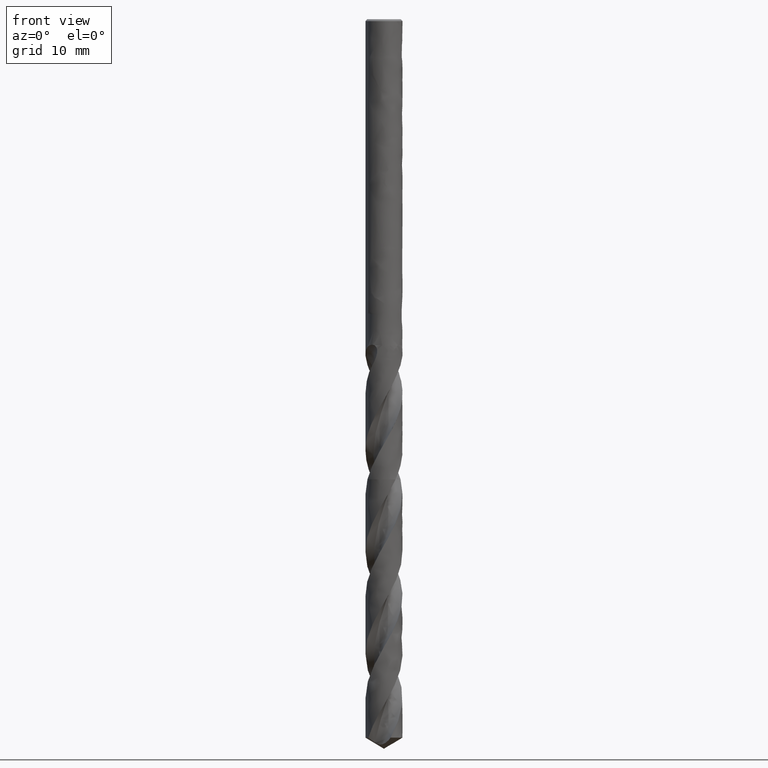
[diagram: clean part render]
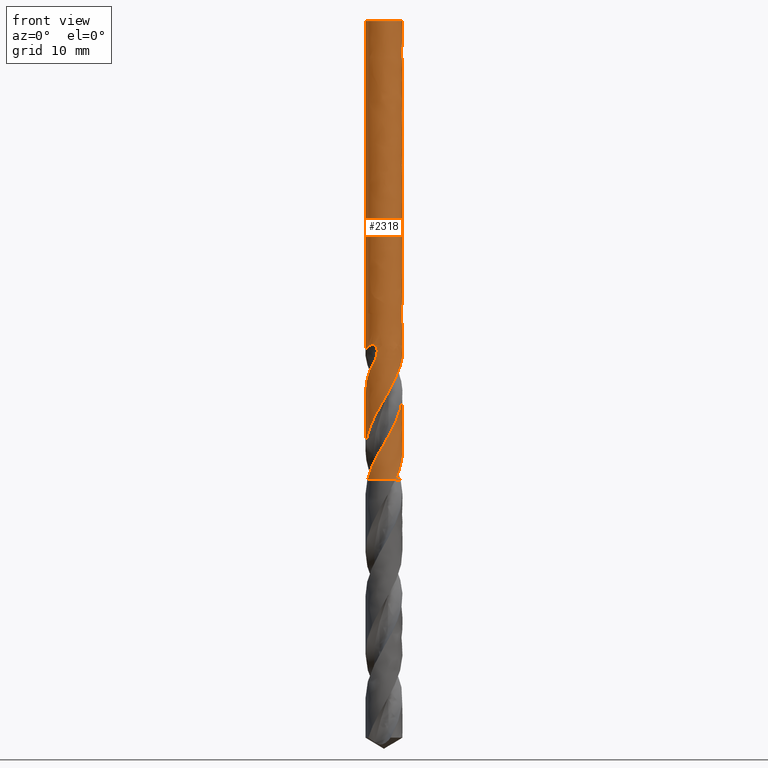
[diagram: same view with one face highlighted and labeled with its STEP entity id]
A machine part, front view. The second image highlights one B-rep face of the part: STEP entity #2318.
In plain terms, the highlighted face is a freeform B-spline surface patch.
Its self-contained STEP definition (entity closure, byte-faithful):
#73 = VERTEX_POINT('', #74);
#74 = CARTESIAN_POINT('', (-1.65, 1.11136697022622E-16, -0.164999999999999));
#90 = EDGE_CURVE('', #73, #73, #91, .T.);
#91 = CIRCLE('', #92, 1.64999999999999);
#92 = AXIS2_PLACEMENT_3D('', #93, #94, #95);
#93 = CARTESIAN_POINT('', (6.18650910348022E-34, 1.01033360929657E-17, -0.164999999999999));
#94 = DIRECTION('', (3.74939945665464E-33, 6.12323399573677E-17, -1.));
#95 = DIRECTION('', (-1., 6.12323399573677E-17, 0.));
#139 = VERTEX_POINT('', #140);
#140 = CARTESIAN_POINT('', (1.64538893806369, -0.123268984329499, -29.9833429949825));
#183 = EDGE_CURVE('', #139, #184, #186, .T.);
#184 = VERTEX_POINT('', #185);
#185 = CARTESIAN_POINT('', (-1.65, 2.45296925447218E-15, -38.4100280208144));
#186 = B_SPLINE_CURVE_WITH_KNOTS('', 3, (#187, #188, #189, #190, #191, #192, #193, #194, #195, #196, #197, #198, #199, #200, #201, #202, #203, #204, #205, #206, #207, #208, #209, #210, #211, #212, #213, #214, #215, #216, #217, #218, #219, #220, #221, #222, #223, #224, #225, #226, #227, #228, #229, #230, #231, #232, #233, #234, #235, #236, #237, #238, #239, #240, #241, #242, #243, #244, #245, #246, #247, #248, #249, #250, #251, #252, #253, #254, #255, #256, #257, #258, #259, #260, #261, #262, #263, #264, #265, #266, #267, #268, #269, #270, #271, #272, #273, #274, #275, #276, #277, #278, #279, #280, #281, #282, #283, #284, #285, #286, #287, #288, #289, #290, #291, #292, #293, #294, #295, #296, #297, #298, #299, #300, #301, #302, #303, #304, #305, #306, #307, #308, #309, #310, #311, #312, #313, #314, #315, #316, #317, #318, #319, #320, #321, #322, #323, #324, #325), .UNSPECIFIED., .F., .U., (4, 3, 3, 3, 3, 3, 3, 3, 3, 3, 3, 3, 3, 3, 3, 3, 3, 3, 3, 3, 3, 3, 3, 3, 3, 3, 3, 3, 3, 3, 3, 3, 3, 3, 3, 3, 3, 3, 3, 3, 3, 3, 3, 3, 3, 3, 4), (0., 0.196691843505556, 0.393388953291087, 0.590114296824917, 0.786881502321511, 0.983704843374498, 1.18059224436054, 1.37756416133713, 1.50891594516263, 1.80465609740093, 2.00182952361287, 2.13326773338844, 2.26467605281186, 2.3960164475034, 2.48358550546319, 2.68061818434923, 2.8119406961306, 2.94325410906195, 3.14017099331272, 3.33706908614019, 3.53393552862286, 3.73079492863606, 3.86207816159605, 3.99334770692011, 4.19016091032413, 4.38695892178182, 4.58373148529971, 4.62264372286411, 4.66156626318189, 4.95777459333329, 5.25389827784508, 5.54993747762322, 5.845896171247, 6.14177626797305, 6.43757974788995, 6.73330812082999, 7.02896250862106, 7.32454368913424, 7.62005217250105, 7.91548827559844, 8.21085201210476, 8.50614308279305, 8.80136086003676, 9.09650436801226, 9.39157228678575, 9.68656306466443, 9.83932886156497), .UNSPECIFIED.);
#187 = CARTESIAN_POINT('', (1.64538893806369, -0.123268984329499, -29.9833429949825));
#188 = CARTESIAN_POINT('', (1.64223135105458, -0.165416315744836, -30.0334654785062));
#189 = CARTESIAN_POINT('', (1.63747907798692, -0.207092304174458, -30.0839106071514));
#190 = CARTESIAN_POINT('', (1.63123277103601, -0.24815246663936, -30.1346420368924));
#191 = CARTESIAN_POINT('', (1.6249862968448, -0.289213728460024, -30.1853748249303));
#192 = CARTESIAN_POINT('', (1.61724234442225, -0.329681855062373, -30.2364281252124));
#193 = CARTESIAN_POINT('', (1.60811216034375, -0.369425607876888, -30.2877694856845));
#194 = CARTESIAN_POINT('', (1.59898066572582, -0.409175065478397, -30.3391182156551));
#195 = CARTESIAN_POINT('', (1.58845663386039, -0.448226496387263, -30.3907825840663));
#196 = CARTESIAN_POINT('', (1.57665810202898, -0.486466061824301, -30.4427308845677));
#197 = CARTESIAN_POINT('', (1.5648570595414, -0.524713764409486, -30.494690239353));
#198 = CARTESIAN_POINT('', (1.55177550660276, -0.562167247350119, -30.54696463174));
#199 = CARTESIAN_POINT('', (1.53753920679001, -0.598726304402958, -30.5995259199814));
#200 = CARTESIAN_POINT('', (1.52329884551485, -0.635295791359519, -30.6521022033901));
#201 = CARTESIAN_POINT('', (1.5078947959274, -0.670991917531544, -30.7049903560605));
#202 = CARTESIAN_POINT('', (1.49145769461568, -0.705729371056854, -30.7581647095181));
#203 = CARTESIAN_POINT('', (1.47501524353394, -0.740478130552968, -30.8113563695893));
#204 = CARTESIAN_POINT('', (1.45753344583138, -0.774280063781973, -30.8648633434737));
#205 = CARTESIAN_POINT('', (1.43914460405115, -0.807070510322028, -30.9186575838616));
#206 = CARTESIAN_POINT('', (1.4207478686669, -0.839875032506618, -30.9724749159938));
#207 = CARTESIAN_POINT('', (1.40143346871859, -0.871684787910792, -31.0266015132699));
#208 = CARTESIAN_POINT('', (1.38133670206284, -0.902446073477058, -31.0810142421729));
#209 = CARTESIAN_POINT('', (1.36793506496717, -0.922959402452656, -31.1172996635362));
#210 = CARTESIAN_POINT('', (1.35418305321833, -0.943010676049988, -31.1537215577119));
#211 = CARTESIAN_POINT('', (1.34012265984578, -0.962585713881092, -31.1902750196292));
#212 = CARTESIAN_POINT('', (1.30846551172472, -1.00665915163457, -31.2725755874433));
#213 = CARTESIAN_POINT('', (1.27522555118036, -1.04834022233193, -31.3555954958477));
#214 = CARTESIAN_POINT('', (1.24086646170517, -1.08754329762786, -31.4392650737293));
#215 = CARTESIAN_POINT('', (1.21795885398917, -1.11368044747255, -31.4950485620914));
#216 = CARTESIAN_POINT('', (1.1945359793711, -1.13873834591323, -31.5511387511323));
#217 = CARTESIAN_POINT('', (1.1707307387024, -1.16270784699224, -31.60751676282));
#218 = CARTESIAN_POINT('', (1.15486187504829, -1.17868620863846, -31.6450990327501));
#219 = CARTESIAN_POINT('', (1.1388209564809, -1.19418285547621, -31.6828172045466));
#220 = CARTESIAN_POINT('', (1.12266754622384, -1.20918054096817, -31.7206813386925));
#221 = CARTESIAN_POINT('', (1.10651780941244, -1.22417481583774, -31.7585368621588));
#222 = CARTESIAN_POINT('', (1.09026220484906, -1.23866546594237, -31.7965499982829));
#223 = CARTESIAN_POINT('', (1.07391182013573, -1.25268248274375, -31.8346927707906));
#224 = CARTESIAN_POINT('', (1.05756988690784, -1.26669225417351, -31.8728158273654));
#225 = CARTESIAN_POINT('', (1.04113211526124, -1.28023145524782, -31.9110730217932));
#226 = CARTESIAN_POINT('', (1.02452851319123, -1.29338367302908, -31.9493880251924));
#227 = CARTESIAN_POINT('', (1.01345833333206, -1.30215269891705, -31.974933926446));
#228 = CARTESIAN_POINT('', (1.00231201771248, -1.31075136117969, -32.0005059261863));
#229 = CARTESIAN_POINT('', (0.991047195800194, -1.31921395372266, -32.0260700823963));
#230 = CARTESIAN_POINT('', (0.965701050823158, -1.33825500906698, -32.0835901048664));
#231 = CARTESIAN_POINT('', (0.939737191077802, -1.3566163226202, -32.1410703631071));
#232 = CARTESIAN_POINT('', (0.913217893656101, -1.37423909080855, -32.1985134370536));
#233 = CARTESIAN_POINT('', (0.895542750792571, -1.38598468649409, -32.2367993132734));
#234 = CARTESIAN_POINT('', (0.877617724402044, -1.39740488382222, -32.2750719006531));
#235 = CARTESIAN_POINT('', (0.859443568173065, -1.40849449879151, -32.3133197567548));
#236 = CARTESIAN_POINT('', (0.841270671163996, -1.4195833454025, -32.3515649628043));
#237 = CARTESIAN_POINT('', (0.822843276134242, -1.43034476408047, -32.389786471108));
#238 = CARTESIAN_POINT('', (0.804172464765405, -1.44076599311378, -32.4279795500478));
#239 = CARTESIAN_POINT('', (0.776173816956998, -1.45639361184284, -32.4852536847828));
#240 = CARTESIAN_POINT('', (0.747623023765346, -1.47125822369007, -32.5424740024526));
#241 = CARTESIAN_POINT('', (0.718579647169145, -1.48530915659814, -32.5996362873632));
#242 = CARTESIAN_POINT('', (0.689539042130018, -1.49935874865101, -32.6567931173799));
#243 = CARTESIAN_POINT('', (0.660003164522755, -1.51259624599059, -32.7139059864181));
#244 = CARTESIAN_POINT('', (0.630032176858627, -1.52497851005278, -32.7709679740332));
#245 = CARTESIAN_POINT('', (0.600066006874955, -1.53735878373039, -32.8280207892304));
#246 = CARTESIAN_POINT('', (0.569658214465276, -1.54888702224775, -32.8850347645891));
#247 = CARTESIAN_POINT('', (0.538864166179559, -1.55952730351463, -32.941997710848));
#248 = CARTESIAN_POINT('', (0.508071219484047, -1.57016720414856, -32.9989586193811));
#249 = CARTESIAN_POINT('', (0.476879294971223, -1.57992289252717, -33.055877334287));
#250 = CARTESIAN_POINT('', (0.445379576065721, -1.58875329526756, -33.112760986147));
#251 = CARTESIAN_POINT('', (0.424372781698939, -1.59464218764465, -33.1506960287117));
#252 = CARTESIAN_POINT('', (0.40322794346835, -1.60011995288637, -33.1886209208367));
#253 = CARTESIAN_POINT('', (0.381989015993349, -1.60517425585524, -33.2265470846104));
#254 = CARTESIAN_POINT('', (0.360752302896379, -1.61022803186072, -33.264469294189));
#255 = CARTESIAN_POINT('', (0.339424119967465, -1.61485819391927, -33.3023992003404));
#256 = CARTESIAN_POINT('', (0.318022082865627, -1.61906206020949, -33.3403322061599));
#257 = CARTESIAN_POINT('', (0.285933882430515, -1.62536494172872, -33.397205385477));
#258 = CARTESIAN_POINT('', (0.253673190838224, -1.63071093504664, -33.4540955744389));
#259 = CARTESIAN_POINT('', (0.221284488115991, -1.63509424050091, -33.5109787531256));
#260 = CARTESIAN_POINT('', (0.188898285467053, -1.63947720760927, -33.5678575410185));
#261 = CARTESIAN_POINT('', (0.156371999081292, -1.64289883995141, -33.6247389394709));
#262 = CARTESIAN_POINT('', (0.123771595562643, -1.64535120631793, -33.6816113635839));
#263 = CARTESIAN_POINT('', (0.09117540760034, -1.6478032555691, -33.7384764335268));
#264 = CARTESIAN_POINT('', (0.0584989801507434, -1.6492866391157, -33.7953455699569));
#265 = CARTESIAN_POINT('', (0.0258143186341794, -1.64979805459743, -33.8522104233425));
#266 = CARTESIAN_POINT('', (0.0193508498918561, -1.64989918821262, -33.8634555819381));
#267 = CARTESIAN_POINT('', (0.0128868886267745, -1.64996233640097, -33.8747008632192));
#268 = CARTESIAN_POINT('', (0.00642292644565755, -1.64998749874533, -33.8859461648073));
#269 = CARTESIAN_POINT('', (-4.2747192119543E-5, -1.6500126677519, -33.8971944438024));
#270 = CARTESIAN_POINT('', (-0.00650847720482805, -1.64999983101621, -33.9084428396284));
#271 = CARTESIAN_POINT('', (-0.0129737726045702, -1.64994899352204, -33.9196912493099));
#272 = CARTESIAN_POINT('', (-0.062175965952124, -1.64956211000586, -34.0052939006639));
#273 = CARTESIAN_POINT('', (-0.111366406079688, -1.64697235795428, -34.0909215925822));
#274 = CARTESIAN_POINT('', (-0.160331397093514, -1.64219178024566, -34.1765276388622));
#275 = CARTESIAN_POINT('', (-0.209282395681873, -1.63741256865344, -34.2621092220268));
#276 = CARTESIAN_POINT('', (-0.258031715731681, -1.63044119358203, -34.3477119538632));
#277 = CARTESIAN_POINT('', (-0.306358360190944, -1.62130951861182, -34.4332946416613));
#278 = CARTESIAN_POINT('', (-0.354671216953041, -1.61218044892841, -34.5188529125317));
#279 = CARTESIAN_POINT('', (-0.402585411596793, -1.6008878982975, -34.6044336333777));
#280 = CARTESIAN_POINT('', (-0.449886413078727, -1.5874829811142, -34.6899942154834));
#281 = CARTESIAN_POINT('', (-0.497174551325896, -1.57408170932087, -34.7755315298818));
#282 = CARTESIAN_POINT('', (-0.543873506379846, -1.55856249857517, -34.8610908920666));
#283 = CARTESIAN_POINT('', (-0.589773928069063, -1.54099536461665, -34.9466300138313));
#284 = CARTESIAN_POINT('', (-0.635662160115513, -1.5234328959113, -35.032146419218));
#285 = CARTESIAN_POINT('', (-0.680774843022437, -1.50381496553743, -35.1176849722646));
#286 = CARTESIAN_POINT('', (-0.724910096502624, -1.48222985801412, -35.2032033227578));
#287 = CARTESIAN_POINT('', (-0.769033921359086, -1.46065033985651, -35.2886995286619));
#288 = CARTESIAN_POINT('', (-0.81220243025245, -1.4370941063135, -35.3742179212333));
#289 = CARTESIAN_POINT('', (-0.854222828736125, -1.41166687248304, -35.459716053604));
#290 = CARTESIAN_POINT('', (-0.89623255788928, -1.38624609483985, -35.5451924772841));
#291 = CARTESIAN_POINT('', (-0.937115205455465, -1.35894289545401, -35.6306910581715));
#292 = CARTESIAN_POINT('', (-0.976688309244192, -1.32987967372455, -35.7161694231762));
#293 = CARTESIAN_POINT('', (-1.01625151265728, -1.30082372301467, -35.8016264032542));
#294 = CARTESIAN_POINT('', (-1.05452515833343, -1.26999442954987, -35.8871054759035));
#295 = CARTESIAN_POINT('', (-1.09133845032867, -1.23752995391393, -35.9725644141966));
#296 = CARTESIAN_POINT('', (-1.12814262694795, -1.2050735168392, -36.0580021919166));
#297 = CARTESIAN_POINT('', (-1.16350532272102, -1.17096669428948, -36.1434619615768));
#298 = CARTESIAN_POINT('', (-1.19726869983182, -1.13536234762433, -36.2289016856551));
#299 = CARTESIAN_POINT('', (-1.23102377295938, -1.09976675772237, -36.3143203961353));
#300 = CARTESIAN_POINT('', (-1.26319705616636, -1.06265672749938, -36.3997610584301));
#301 = CARTESIAN_POINT('', (-1.29364507851894, -1.02419842356046, -36.4851816875274));
#302 = CARTESIAN_POINT('', (-1.32408564309556, -0.985749539393084, -36.570581394152));
#303 = CARTESIAN_POINT('', (-1.35281681880069, -0.945934074585525, -36.656003083692));
#304 = CARTESIAN_POINT('', (-1.37971074088649, -0.904929981535844, -36.7414046988117));
#305 = CARTESIAN_POINT('', (-1.40659807534998, -0.863935932371806, -36.8267853949453));
#306 = CARTESIAN_POINT('', (-1.43166220024866, -0.821733812499336, -36.9121881174314));
#307 = CARTESIAN_POINT('', (-1.4547918209496, -0.778511886677481, -36.9975707261298));
#308 = CARTESIAN_POINT('', (-1.47791575126747, -0.73530059437697, -37.082932328874));
#309 = CARTESIAN_POINT('', (-1.49911734601485, -0.691049047548413, -37.1683159708881));
#310 = CARTESIAN_POINT('', (-1.5183026437962, -0.645954396100433, -37.2536794989227));
#311 = CARTESIAN_POINT('', (-1.53748317964365, -0.600870937481036, -37.3390218390934));
#312 = CARTESIAN_POINT('', (-1.55465771180191, -0.554922948646565, -37.4243861764716));
#313 = CARTESIAN_POINT('', (-1.56975023566918, -0.508315057436397, -37.5097304581931));
#314 = CARTESIAN_POINT('', (-1.58483896264212, -0.461718891583711, -37.5950532694686));
#315 = CARTESIAN_POINT('', (-1.59785408887474, -0.414440405961563, -37.6803979804224));
#316 = CARTESIAN_POINT('', (-1.60873809667148, -0.366690245735858, -37.7657227426576));
#317 = CARTESIAN_POINT('', (-1.61961931696506, -0.318952314803394, -37.8510256523684));
#318 = CARTESIAN_POINT('', (-1.62837587342201, -0.270719408504877, -37.9363503759895));
#319 = CARTESIAN_POINT('', (-1.63496920834824, -0.22220640799305, -38.021655206602));
#320 = CARTESIAN_POINT('', (-1.64156081955011, -0.173706090446843, -38.1069377355999));
#321 = CARTESIAN_POINT('', (-1.64599359603662, -0.124901912149888, -38.1922420825859));
#322 = CARTESIAN_POINT('', (-1.64824826088427, -0.0760109892847059, -38.2775265128204));
#323 = CARTESIAN_POINT('', (-1.6494158759354, -0.050692025599088, -38.3216924492665));
#324 = CARTESIAN_POINT('', (-1.65, -0.0253449787045638, -38.3658615715157));
#325 = CARTESIAN_POINT('', (-1.65, 2.52582764046321E-15, -38.4100280208144));
#491 = VERTEX_POINT('', #492);
#492 = CARTESIAN_POINT('', (1.46615714011467, -0.756890507597214, -34.6872458062529));
#520 = EDGE_CURVE('', #521, #491, #523, .T.);
#521 = VERTEX_POINT('', #522);
#522 = CARTESIAN_POINT('', (1.53910565013381, 0.594687983505777, -32.2474321175249));
#523 = B_SPLINE_CURVE_WITH_KNOTS('', 3, (#524, #525, #526, #527, #528, #529, #530, #531, #532, #533, #534, #535, #536, #537, #538, #539, #540, #541, #542, #543, #544, #545, #546, #547, #548, #549, #550, #551, #552, #553, #554, #555, #556, #557, #558, #559, #560, #561, #562, #563, #564, #565, #566, #567, #568, #569), .UNSPECIFIED., .F., .U., (4, 3, 3, 3, 3, 3, 3, 3, 3, 3, 3, 3, 3, 3, 3, 4), (0., 0.0875494775017101, 0.284421161959008, 0.481274884137651, 0.678093466911457, 0.809346629557163, 1.00613133969555, 1.13737751973871, 1.2248961605815, 1.26381913148016, 1.46115644533372, 1.65847511778099, 1.95457678031589, 2.2505925900521, 2.54652905972296, 2.81024826565918), .UNSPECIFIED.);
#524 = CARTESIAN_POINT('', (1.53910565013381, 0.594687983505777, -32.247432117525));
#525 = CARTESIAN_POINT('', (1.54411796900874, 0.581715654293429, -32.2730885419306));
#526 = CARTESIAN_POINT('', (1.54897857578513, 0.568648297674712, -32.2987272173271));
#527 = CARTESIAN_POINT('', (1.55368591632017, 0.555481838972569, -32.3243424879544));
#528 = CARTESIAN_POINT('', (1.56427126859061, 0.525874547450152, -32.3819433054594));
#529 = CARTESIAN_POINT('', (1.57408458964567, 0.495753723457203, -32.4394297781565));
#530 = CARTESIAN_POINT('', (1.58306273670135, 0.465201431282883, -32.4968096168594));
#531 = CARTESIAN_POINT('', (1.59204006460429, 0.434651926654102, -32.5541842203115));
#532 = CARTESIAN_POINT('', (1.60018380715275, 0.403665832505781, -32.6114647041189));
#533 = CARTESIAN_POINT('', (1.60744113950628, 0.372334504207391, -32.6686607596191));
#534 = CARTESIAN_POINT('', (1.61469717638856, 0.341008768712719, -32.7258466053285));
#535 = CARTESIAN_POINT('', (1.62106971866525, 0.309329346773994, -32.782958998434));
#536 = CARTESIAN_POINT('', (1.62652105668907, 0.277361230433366, -32.8399896496349));
#537 = CARTESIAN_POINT('', (1.63015641137049, 0.256042530164318, -32.8780218985839));
#538 = CARTESIAN_POINT('', (1.63338276443771, 0.234592482104956, -32.916022107913));
#539 = CARTESIAN_POINT('', (1.6361903489102, 0.21302850075315, -32.9539861293364));
#540 = CARTESIAN_POINT('', (1.64039969278788, 0.180698142122483, -33.0109046736281));
#541 = CARTESIAN_POINT('', (1.64366710590381, 0.148102835578697, -33.0677508066599));
#542 = CARTESIAN_POINT('', (1.64596090858072, 0.115380619795072, -33.1245547362146));
#543 = CARTESIAN_POINT('', (1.64749076747527, 0.0935564352782559, -33.1624402953124));
#544 = CARTESIAN_POINT('', (1.6485878839774, 0.0716745278174714, -33.2003125758046));
#545 = CARTESIAN_POINT('', (1.64924852074226, 0.0497927387223025, -33.2381900354775));
#546 = CARTESIAN_POINT('', (1.64968905190082, 0.0352013468799783, -33.2634477899361));
#547 = CARTESIAN_POINT('', (1.64993575049179, 0.0206102661880688, -33.2887098460537));
#548 = CARTESIAN_POINT('', (1.6499890036537, 0.006023937406053, -33.3139743096468));
#549 = CARTESIAN_POINT('', (1.65001268742268, -0.000463174884921591, -33.3252104071426));
#550 = CARTESIAN_POINT('', (1.64999811038105, -0.00694945005227383, -33.3364471336925));
#551 = CARTESIAN_POINT('', (1.64994530614357, -0.0134345351539962, -33.3476843022267));
#552 = CARTESIAN_POINT('', (1.64967759157441, -0.0463135586339243, -33.4046561263878));
#553 = CARTESIAN_POINT('', (1.64842735329261, -0.0791654028204028, -33.4616474696399));
#554 = CARTESIAN_POINT('', (1.64619769765188, -0.111951508456203, -33.5186298398722));
#555 = CARTESIAN_POINT('', (1.64396825263485, -0.144734516963012, -33.5756068272831));
#556 = CARTESIAN_POINT('', (1.64075807533308, -0.177464562781536, -33.6325843789034));
#557 = CARTESIAN_POINT('', (1.63657262262832, -0.210071537490078, -33.6895522676853));
#558 = CARTESIAN_POINT('', (1.63029182066989, -0.259002433394075, -33.7750398009747));
#559 = CARTESIAN_POINT('', (1.62181125598932, -0.307671306018409, -33.8605442749296));
#560 = CARTESIAN_POINT('', (1.6111728681114, -0.355839836248396, -33.9460335537541));
#561 = CARTESIAN_POINT('', (1.60053756476656, -0.403994400318607, -34.0314980455046));
#562 = CARTESIAN_POINT('', (1.58774004454993, -0.451678249054663, -34.1169872411854));
#563 = CARTESIAN_POINT('', (1.57283628545866, -0.498684288046426, -34.2024533826185));
#564 = CARTESIAN_POINT('', (1.55793652096897, -0.545677728176631, -34.2878966168654));
#565 = CARTESIAN_POINT('', (1.54092442184151, -0.592015437205011, -34.373360673698));
#566 = CARTESIAN_POINT('', (1.52187765463306, -0.637486003241219, -34.4588041108886));
#567 = CARTESIAN_POINT('', (1.50490442274498, -0.678006394600473, -34.5349457078788));
#568 = CARTESIAN_POINT('', (1.48630863628568, -0.717855456029562, -34.611103062278));
#569 = CARTESIAN_POINT('', (1.46615714011467, -0.756890507597223, -34.6872458062529));
#572 = VERTEX_POINT('', #573);
#573 = CARTESIAN_POINT('', (1.32723117543861, 0.980284350045358, -31.4755215713197));
#582 = EDGE_CURVE('', #583, #572, #585, .T.);
#583 = VERTEX_POINT('', #584);
#584 = CARTESIAN_POINT('', (1.04998764540543, 1.27280239805555, -29.));
#585 = B_SPLINE_CURVE_WITH_KNOTS('', 3, (#586, #587, #588, #589, #590, #591, #592, #593, #594, #595, #596, #597, #598, #599, #600, #601, #602, #603, #604, #605, #606, #607, #608, #609, #610, #611, #612, #613, #614, #615, #616, #617, #618, #619, #620, #621, #622, #623, #624, #625, #626, #627, #628, #629, #630, #631, #632, #633, #634, #635, #636, #637, #638, #639, #640, #641, #642, #643, #644, #645, #646, #647, #648, #649, #650, #651, #652, #653, #654, #655, #656, #657, #658, #659, #660, #661, #662, #663, #664, #665, #666, #667, #668, #669, #670, #671, #672, #673, #674, #675, #676, #677, #678, #679, #680, #681, #682), .UNSPECIFIED., .F., .U., (4, 3, 3, 3, 3, 3, 3, 3, 3, 3, 3, 3, 3, 3, 3, 3, 3, 3, 3, 3, 3, 3, 3, 3, 3, 3, 3, 3, 3, 3, 3, 3, 4), (0., 0.0876303127930591, 0.174973486297054, 0.233055130452764, 0.291030990434377, 0.348921100483589, 0.406762531524445, 0.464602443433246, 0.522485560539364, 0.580443415477149, 0.638490850056631, 0.69662895767908, 0.722540610505984, 0.748461545433137, 0.83589767612148, 0.923487689661412, 1.0111919792304, 1.09897793056975, 1.2309677184985, 1.36305423353449, 1.49517711764423, 1.62729333607008, 1.75937771008891, 1.89141058300535, 2.0233781190771, 2.15527384137401, 2.28709249628333, 2.41883762951828, 2.55051220943465, 2.68211681930373, 2.81364951632583, 2.94512266158331, 3.01816239662991), .UNSPECIFIED.);
#586 = CARTESIAN_POINT('', (1.04998764540571, 1.27280239805532, -29.));
#587 = CARTESIAN_POINT('', (1.02745511527649, 1.29139041948862, -29.000027134948));
#588 = CARTESIAN_POINT('', (1.00436191236108, 1.30942583990984, -29.0017599789356));
#589 = CARTESIAN_POINT('', (0.98107447238416, 1.32664723255134, -29.0055479818319));
#590 = CARTESIAN_POINT('', (0.957863338639021, 1.34381219565058, -29.0093235725341));
#591 = CARTESIAN_POINT('', (0.934322263688094, 1.36026544107529, -29.0151733340593));
#592 = CARTESIAN_POINT('', (0.911034465741511, 1.37568753800821, -29.0233882696083));
#593 = CARTESIAN_POINT('', (0.89554849770027, 1.38594295592191, -29.0288510544394));
#594 = CARTESIAN_POINT('', (0.880115084412994, 1.39578438628761, -29.0353803250106));
#595 = CARTESIAN_POINT('', (0.864962292117408, 1.40511217816052, -29.0430102663795));
#596 = CARTESIAN_POINT('', (0.849837097622152, 1.41442298131395, -29.0506263113262));
#597 = CARTESIAN_POINT('', (0.834931721529012, 1.42325883093115, -29.0593719430429));
#598 = CARTESIAN_POINT('', (0.820500435066246, 1.43153031265709, -29.0692099949638));
#599 = CARTESIAN_POINT('', (0.8060904933811, 1.43978956034287, -29.079033495789));
#600 = CARTESIAN_POINT('', (0.792090523711571, 1.44752260168377, -29.0899912285495));
#601 = CARTESIAN_POINT('', (0.778746922039617, 1.45466602057442, -29.1019613004432));
#602 = CARTESIAN_POINT('', (0.765414540821325, 1.46180343266101, -29.1139213068659));
#603 = CARTESIAN_POINT('', (0.75267690160448, 1.46838555166248, -29.1269467757307));
#604 = CARTESIAN_POINT('', (0.740733596551421, 1.47438588535702, -29.1408424676472));
#605 = CARTESIAN_POINT('', (0.728790605174169, 1.48038606146038, -29.1547377946108));
#606 = CARTESIAN_POINT('', (0.717588554876552, 1.48583225220636, -29.1695634935806));
#607 = CARTESIAN_POINT('', (0.707255076736291, 1.49073480419246, -29.1850844948783));
#608 = CARTESIAN_POINT('', (0.696913879705263, 1.49564101828175, -29.2006170900374));
#609 = CARTESIAN_POINT('', (0.68739979670399, 1.50002374291959, -29.216906383734));
#610 = CARTESIAN_POINT('', (0.678766814735183, 1.50392008139205, -29.2337159933052));
#611 = CARTESIAN_POINT('', (0.670122685986703, 1.50782145075958, -29.2505473071977));
#612 = CARTESIAN_POINT('', (0.662330758458867, 1.51124955209219, -29.2679562333307));
#613 = CARTESIAN_POINT('', (0.655387336868858, 1.51425474695375, -29.2857324104388));
#614 = CARTESIAN_POINT('', (0.648433183528704, 1.5172645866435, -29.3035360624004));
#615 = CARTESIAN_POINT('', (0.642309322726513, 1.51985925790841, -29.3217568020518));
#616 = CARTESIAN_POINT('', (0.636975674395901, 1.52209132125109, -29.3402218906118));
#617 = CARTESIAN_POINT('', (0.631633694635523, 1.52432687119016, -29.3587158225785));
#618 = CARTESIAN_POINT('', (0.627071525225367, 1.526203953867, -29.3774954042215));
#619 = CARTESIAN_POINT('', (0.623230730311516, 1.52777074746029, -29.3964256288146));
#620 = CARTESIAN_POINT('', (0.621518921165038, 1.52846905384316, -29.4048626665451));
#621 = CARTESIAN_POINT('', (0.619949159649647, 1.52910608849325, -29.4133349297979));
#622 = CARTESIAN_POINT('', (0.618515800172791, 1.52968565559615, -29.4218326418787));
#623 = CARTESIAN_POINT('', (0.617081927236356, 1.5302654303122, -29.4303333980191));
#624 = CARTESIAN_POINT('', (0.615784109736095, 1.53078787323758, -29.4388622028099));
#625 = CARTESIAN_POINT('', (0.614616609210992, 1.53125648527018, -29.4474104383334));
#626 = CARTESIAN_POINT('', (0.610678412970057, 1.53283720074358, -29.4762452253688));
#627 = CARTESIAN_POINT('', (0.608216258798784, 1.5338105003704, -29.5053460882798));
#628 = CARTESIAN_POINT('', (0.607015136635347, 1.53428570478108, -29.5344628271207));
#629 = CARTESIAN_POINT('', (0.605811900561994, 1.53476174552577, -29.5636308098441));
#630 = CARTESIAN_POINT('', (0.605870373796186, 1.53473859631465, -29.5928813328483));
#631 = CARTESIAN_POINT('', (0.606997350023357, 1.53429274164503, -29.6220528385721));
#632 = CARTESIAN_POINT('', (0.608125796582166, 1.53384630528237, -29.6512624034728));
#633 = CARTESIAN_POINT('', (0.61032671349361, 1.53297505367111, -29.6804406154771));
#634 = CARTESIAN_POINT('', (0.613435187632264, 1.53173015592648, -29.7094829810297));
#635 = CARTESIAN_POINT('', (0.616546556082046, 1.53048409905321, -29.7385523880303));
#636 = CARTESIAN_POINT('', (0.620571030030747, 1.528861829661, -29.7675206442592));
#637 = CARTESIAN_POINT('', (0.625370370733358, 1.52689616523483, -29.7963193627535));
#638 = CARTESIAN_POINT('', (0.632586376846759, 1.52394070793452, -29.8396194203218));
#639 = CARTESIAN_POINT('', (0.641562975015067, 1.52020524034978, -29.8826024001326));
#640 = CARTESIAN_POINT('', (0.651916462333919, 1.51575226410454, -29.9251309406718));
#641 = CARTESIAN_POINT('', (0.662277537079752, 1.51129602454993, -29.9676906477336));
#642 = CARTESIAN_POINT('', (0.674032806838034, 1.50611396639122, -30.0098566946961));
#643 = CARTESIAN_POINT('', (0.686875360048874, 1.50023406165762, -30.0515584231182));
#644 = CARTESIAN_POINT('', (0.699721449364553, 1.49435253793447, -30.0932716338119));
#645 = CARTESIAN_POINT('', (0.713669581855332, 1.48776597611653, -30.1345625869629));
#646 = CARTESIAN_POINT('', (0.728464157843484, 1.48048639667421, -30.175400492429));
#647 = CARTESIAN_POINT('', (0.743257987435828, 1.47320718449133, -30.2162363375967));
#648 = CARTESIAN_POINT('', (0.758908698239167, 1.46522970539233, -30.2566501846099));
#649 = CARTESIAN_POINT('', (0.77519806691903, 1.45656031699515, -30.2966365416258));
#650 = CARTESIAN_POINT('', (0.79148350931874, 1.44789301820918, -30.3366132605985));
#651 = CARTESIAN_POINT('', (0.808417373127847, 1.43852872652138, -30.3761850709342));
#652 = CARTESIAN_POINT('', (0.82580880042777, 1.42847464980519, -30.415363248024));
#653 = CARTESIAN_POINT('', (0.843193446625197, 1.41842449328045, -30.4545261491257));
#654 = CARTESIAN_POINT('', (0.861043243258682, 1.4076804014678, -30.493312883172));
#655 = CARTESIAN_POINT('', (0.879184270311468, 1.39625750448724, -30.531749648831));
#656 = CARTESIAN_POINT('', (0.897316320225147, 1.38484026015991, -30.5701673939467));
#657 = CARTESIAN_POINT('', (0.915745844649712, 1.37274078423084, -30.6082489877816));
#658 = CARTESIAN_POINT('', (0.934317821137417, 1.3599816944007, -30.6460290772192));
#659 = CARTESIAN_POINT('', (0.95287969117184, 1.34722954778123, -30.6837886075792));
#660 = CARTESIAN_POINT('', (0.971589363342772, 1.33381466633847, -30.7212575901094));
#661 = CARTESIAN_POINT('', (0.990304332642506, 1.31977169569188, -30.7584797245875));
#662 = CARTESIAN_POINT('', (1.00900836668393, 1.30573693042939, -30.7956801099702));
#663 = CARTESIAN_POINT('', (1.02772128282797, 1.29107208571392, -30.8326434501568));
#664 = CARTESIAN_POINT('', (1.04631358266819, 1.27582439494, -30.869420052919));
#665 = CARTESIAN_POINT('', (1.06489551267863, 1.26058520854474, -30.9061761435813));
#666 = CARTESIAN_POINT('', (1.08336177265642, 1.2447598845949, -30.9427523285475));
#667 = CARTESIAN_POINT('', (1.10159645721517, 1.22840760558175, -30.9792027109296));
#668 = CARTESIAN_POINT('', (1.11982137657442, 1.21206408368563, -31.0156335730806));
#669 = CARTESIAN_POINT('', (1.1378182786457, 1.19519105709124, -31.0519452634338));
#670 = CARTESIAN_POINT('', (1.15547956261924, 1.17786543389715, -31.0881994761548));
#671 = CARTESIAN_POINT('', (1.1731314616312, 1.16054901729916, -31.1244344238896));
#672 = CARTESIAN_POINT('', (1.1904499523199, 1.14277862659613, -31.1606190811345));
#673 = CARTESIAN_POINT('', (1.20734050464136, 1.12464612472271, -31.1968177120196));
#674 = CARTESIAN_POINT('', (1.22422182744035, 1.10652353101158, -31.2329965628482));
#675 = CARTESIAN_POINT('', (1.24067862967556, 1.08803619113801, -31.2691952201272));
#676 = CARTESIAN_POINT('', (1.25663458562679, 1.06928458242255, -31.3054733312938));
#677 = CARTESIAN_POINT('', (1.27258331747821, 1.05054146354585, -31.3417350174528));
#678 = CARTESIAN_POINT('', (1.28803435045324, 1.0315312911001, -31.3780823756652));
#679 = CARTESIAN_POINT('', (1.30292855830125, 1.01236217430475, -31.4145691399758));
#680 = CARTESIAN_POINT('', (1.31120301612164, 1.00171279637234, -31.4348393144873));
#681 = CARTESIAN_POINT('', (1.3193066997514, 0.991013493258323, -31.4551538505759));
#682 = CARTESIAN_POINT('', (1.32723117543861, 0.980284350045358, -31.4755215713197));
#684 = EDGE_CURVE('', #583, #685, #687, .T.);
#685 = VERTEX_POINT('', #686);
#686 = CARTESIAN_POINT('', (1.05106588342437, 1.27191214661286, -29.));
#687 = LINE('', #688, #689);
#688 = CARTESIAN_POINT('', (1.04998764540543, 1.27280239805555, -29.));
#689 = VECTOR('', #690, 0.00139826494509455);
#690 = DIRECTION('', (0.00107823801893736, -0.00089025144268251, 0.));
#692 = EDGE_CURVE('', #685, #139, #693, .T.);
#693 = B_SPLINE_CURVE_WITH_KNOTS('', 3, (#694, #695, #696, #697, #698, #699, #700, #701, #702, #703, #704, #705, #706, #707, #708, #709, #710, #711, #712, #713, #714, #715, #716, #717, #718, #719, #720, #721, #722, #723, #724, #725, #726, #727, #728, #729, #730, #731, #732, #733, #734, #735, #736, #737, #738, #739, #740, #741, #742, #743, #744, #745), .UNSPECIFIED., .F., .U., (4, 3, 3, 3, 3, 3, 3, 3, 3, 3, 3, 3, 3, 3, 3, 3, 3, 4), (0., 0.0877991639400641, 0.175287604423629, 0.262557689548064, 0.349676160805079, 0.436689587128276, 0.52363030035957, 0.653469681222114, 0.783201608597501, 0.912878392095424, 1.04253398471002, 1.17219167461091, 1.36547646148284, 1.55888412843109, 1.68869950486073, 1.71458963685126, 1.74049911277958, 1.90488424193574), .UNSPECIFIED.);
#694 = CARTESIAN_POINT('', (1.05106588342509, 1.27191214661227, -29.));
#695 = CARTESIAN_POINT('', (1.0736260399898, 1.25326918376845, -29.0000271583664));
#696 = CARTESIAN_POINT('', (1.09571893426176, 1.23399628981486, -29.0017566670251));
#697 = CARTESIAN_POINT('', (1.11713486768011, 1.21429390487367, -29.0048703929037));
#698 = CARTESIAN_POINT('', (1.13847500956975, 1.19466124716991, -29.0079730992278));
#699 = CARTESIAN_POINT('', (1.15921045437204, 1.17454251677717, -29.0124585366966));
#700 = CARTESIAN_POINT('', (1.17922740196365, 1.15408956951272, -29.0180682112173));
#701 = CARTESIAN_POINT('', (1.19919439086637, 1.13368766911366, -29.0236638850028));
#702 = CARTESIAN_POINT('', (1.21849324623835, 1.11290693392881, -29.0303908975043));
#703 = CARTESIAN_POINT('', (1.23706477730944, 1.09186571369392, -29.0380456369218));
#704 = CARTESIAN_POINT('', (1.25560404415569, 1.07086104826209, -29.0456870778001));
#705 = CARTESIAN_POINT('', (1.27345184460108, 1.04955996226376, -29.054266739729));
#706 = CARTESIAN_POINT('', (1.29058008014743, 1.02805790533736, -29.0636250033926));
#707 = CARTESIAN_POINT('', (1.30768766296259, 1.00658177496952, -29.0729719831325));
#708 = CARTESIAN_POINT('', (1.3241018566185, 0.984875049878032, -29.0831091257381));
#709 = CARTESIAN_POINT('', (1.33981259012125, 0.963017249768973, -29.0939104693031));
#710 = CARTESIAN_POINT('', (1.35551019489137, 0.94117771521151, -29.1047027866854));
#711 = CARTESIAN_POINT('', (1.37052389183992, 0.919162157403285, -29.1161709277276));
#712 = CARTESIAN_POINT('', (1.38485435317065, 0.897038695098663, -29.1282143688218));
#713 = CARTESIAN_POINT('', (1.40625581351646, 0.863998977095362, -29.146200337386));
#714 = CARTESIAN_POINT('', (1.42616979729101, 0.83066155489936, -29.1654987935641));
#715 = CARTESIAN_POINT('', (1.44462456011693, 0.797220095272921, -29.1858514602924));
#716 = CARTESIAN_POINT('', (1.46306405000634, 0.763806311390379, -29.2061872834021));
#717 = CARTESIAN_POINT('', (1.48007983321397, 0.730229736531999, -29.2276124736773));
#718 = CARTESIAN_POINT('', (1.49571765988547, 0.696655353748713, -29.2499342262966));
#719 = CARTESIAN_POINT('', (1.51134883953941, 0.663095242098892, -29.2722464908275));
#720 = CARTESIAN_POINT('', (1.52562639529613, 0.629488245368595, -29.2954878377488));
#721 = CARTESIAN_POINT('', (1.53860621922762, 0.595978944388227, -29.3195108046416));
#722 = CARTESIAN_POINT('', (1.55158392208602, 0.562475119266131, -29.3435298458673));
#723 = CARTESIAN_POINT('', (1.56328063890966, 0.52902725516794, -29.3683605595412));
#724 = CARTESIAN_POINT('', (1.57375898795749, 0.495764710142826, -29.3938879705023));
#725 = CARTESIAN_POINT('', (1.58423750650128, 0.462501627068574, -29.4194157943904));
#726 = CARTESIAN_POINT('', (1.59350904064465, 0.42938791256617, -29.445668188942));
#727 = CARTESIAN_POINT('', (1.60164137231014, 0.396541188914418, -29.4725542404551));
#728 = CARTESIAN_POINT('', (1.61376449430883, 0.347575547267378, -29.5126341211047));
#729 = CARTESIAN_POINT('', (1.62337488297026, 0.299120202601476, -29.5541894609392));
#730 = CARTESIAN_POINT('', (1.63071569276777, 0.251527989219727, -29.5969924365219));
#731 = CARTESIAN_POINT('', (1.63806116945751, 0.203905519267312, -29.6398226239354));
#732 = CARTESIAN_POINT('', (1.64314794367759, 0.157063078480137, -29.6839819085804));
#733 = CARTESIAN_POINT('', (1.64624198033771, 0.111298437427429, -29.7292842837113));
#734 = CARTESIAN_POINT('', (1.64831870014958, 0.080581174770958, -29.7596912731217));
#735 = CARTESIAN_POINT('', (1.64950032653196, 0.0503212362247891, -29.7906409179328));
#736 = CARTESIAN_POINT('', (1.64987141458733, 0.0205989156944831, -29.8220876021973));
#737 = CARTESIAN_POINT('', (1.64994542368392, 0.0146711525684276, -29.8283592691498));
#738 = CARTESIAN_POINT('', (1.64998721968005, 0.00876428197698934, -29.8346512109052));
#739 = CARTESIAN_POINT('', (1.64999748845126, 0.00287890683081587, -29.8409630975747));
#740 = CARTESIAN_POINT('', (1.65000776489483, -0.0030108656019657, -29.8472797002009));
#741 = CARTESIAN_POINT('', (1.64998646725117, -0.00887925723062277, -29.8536164349925));
#742 = CARTESIAN_POINT('', (1.64993428793451, -0.0147256747905975, -29.8599729806493));
#743 = CARTESIAN_POINT('', (1.6496032313075, -0.0518188258970114, -29.9003026878833));
#744 = CARTESIAN_POINT('', (1.64802789013748, -0.088044369038821, -29.9414531495226));
#745 = CARTESIAN_POINT('', (1.64538893806369, -0.123268984329499, -29.9833429949825));
#963 = VERTEX_POINT('', #964);
#964 = CARTESIAN_POINT('', (-1.47692313127088, -0.73566165070433, -41.));
#970 = EDGE_CURVE('', #491, #963, #971, .T.);
#971 = B_SPLINE_CURVE_WITH_KNOTS('', 3, (#972, #973, #974, #975, #976, #977, #978, #979, #980, #981, #982, #983, #984, #985, #986, #987, #988, #989, #990, #991, #992, #993, #994, #995, #996, #997, #998, #999, #1000, #1001, #1002, #1003, #1004, #1005, #1006, #1007, #1008, #1009, #1010, #1011, #1012, #1013, #1014, #1015, #1016, #1017, #1018, #1019, #1020, #1021, #1022, #1023, #1024, #1025, #1026, #1027, #1028, #1029), .UNSPECIFIED., .F., .U., (4, 3, 3, 3, 3, 3, 3, 3, 3, 3, 3, 3, 3, 3, 3, 3, 3, 3, 3, 4), (0., 0.443779945134634, 0.887305231873834, 1.33058163917853, 1.77361229511062, 2.21639837306455, 2.65893894657505, 3.10123039919732, 3.54326688593331, 3.60162666591039, 3.64054890616981, 4.08529299061455, 4.52974229472406, 4.97391309826531, 5.41781826632212, 5.86146731833168, 6.30486692861131, 6.74802158666262, 7.19093364565423, 7.28307716105545), .UNSPECIFIED.);
#972 = CARTESIAN_POINT('', (1.46615714011467, -0.756890507597214, -34.6872458062529));
#973 = CARTESIAN_POINT('', (1.43224671696818, -0.822577695534576, -34.8153768713516));
#974 = CARTESIAN_POINT('', (1.39389594403225, -0.886011780894078, -34.9435837881536));
#975 = CARTESIAN_POINT('', (1.35149583968215, -0.946551105499286, -35.0717224420713));
#976 = CARTESIAN_POINT('', (1.30912006618039, -1.00705569025779, -35.1997875649872));
#977 = CARTESIAN_POINT('', (1.26265262092927, -1.0647360561501, -35.3279287931827));
#978 = CARTESIAN_POINT('', (1.21256524460344, -1.1190109595441, -35.456001726539));
#979 = CARTESIAN_POINT('', (1.16250597426901, -1.17325540716101, -35.5840027931491));
#980 = CARTESIAN_POINT('', (1.10877557468175, -1.22415811542121, -35.7120797672508));
#981 = CARTESIAN_POINT('', (1.05191832526603, -1.27120723604356, -35.8400887401181));
#982 = CARTESIAN_POINT('', (0.995092597372437, -1.31823027274676, -35.9680267451191));
#983 = CARTESIAN_POINT('', (0.935080457687723, -1.36145615168772, -36.0960403114299));
#984 = CARTESIAN_POINT('', (0.872488837850154, -1.40045108012629, -36.2239861872417));
#985 = CARTESIAN_POINT('', (0.809931772126672, -1.43942448115896, -36.3518614296939));
#986 = CARTESIAN_POINT('', (0.744728570716979, -1.47421494677966, -36.4798120314119));
#987 = CARTESIAN_POINT('', (0.677536976774599, -1.50447454119475, -36.6076949338716));
#988 = CARTESIAN_POINT('', (0.610382637469831, -1.53471735806137, -36.7355069311644));
#989 = CARTESIAN_POINT('', (0.541168223032099, -1.56046765591243, -36.863394317084));
#990 = CARTESIAN_POINT('', (0.470590016865998, -1.58146926496414, -36.9912140696384));
#991 = CARTESIAN_POINT('', (0.40005154153242, -1.60245905150778, -37.1189618681795));
#992 = CARTESIAN_POINT('', (0.328073413425246, -1.61872853729722, -37.246784839671));
#993 = CARTESIAN_POINT('', (0.255378554883888, -1.63011711042673, -37.3745404877549));
#994 = CARTESIAN_POINT('', (0.182725602440705, -1.64149911843356, -37.5022224890799));
#995 = CARTESIAN_POINT('', (0.109276616579962, -1.6480183979701, -37.6299793077345));
#996 = CARTESIAN_POINT('', (0.0357682595010599, -1.64961226705316, -37.7576690727442));
#997 = CARTESIAN_POINT('', (0.0260633331560012, -1.64982269730449, -37.774527288785));
#998 = CARTESIAN_POINT('', (0.0163565637960338, -1.64994748055793, -37.7913857305321));
#999 = CARTESIAN_POINT('', (0.00664964624682842, -1.64998660061371, -37.8082440681027));
#1000 = CARTESIAN_POINT('', (0.000175753144816922, -1.6500126911886, -37.8194875009181));
#1001 = CARTESIAN_POINT('', (-0.00629827393229163, -1.65000067953022, -37.830731009563));
#1002 = CARTESIAN_POINT('', (-0.0127719277363727, -1.64995056830861, -37.8419744987625));
#1003 = CARTESIAN_POINT('', (-0.0867429842562149, -1.64937797358571, -37.9704479698858));
#1004 = CARTESIAN_POINT('', (-0.160709465720794, -1.64381948359733, -38.0989977933139));
#1005 = CARTESIAN_POINT('', (-0.233922066696566, -1.63333415647638, -38.2274791181179));
#1006 = CARTESIAN_POINT('', (-0.307086141709174, -1.62285577912351, -38.3558752843569));
#1007 = CARTESIAN_POINT('', (-0.379578352567026, -1.60744549604362, -38.4843474805909));
#1008 = CARTESIAN_POINT('', (-0.450665446730008, -1.58726199952107, -38.6127515509347));
#1009 = CARTESIAN_POINT('', (-0.52170799633878, -1.56709115036956, -38.7410751607935));
#1010 = CARTESIAN_POINT('', (-0.591426233430205, -1.54213064722244, -38.8694744819404));
#1011 = CARTESIAN_POINT('', (-0.659116331288566, -1.51263533669877, -38.9978058232668));
#1012 = CARTESIAN_POINT('', (-0.726765947215667, -1.48315766578816, -39.1260604162844));
#1013 = CARTESIAN_POINT('', (-0.792464744612667, -1.44911802998378, -39.2543906587453));
#1014 = CARTESIAN_POINT('', (-0.855551355355774, -1.41086210465414, -39.3826529211985));
#1015 = CARTESIAN_POINT('', (-0.918601567573832, -1.37262825150812, -39.5108411813062));
#1016 = CARTESIAN_POINT('', (-0.979111852663071, -1.33014101886, -39.6391050266974));
#1017 = CARTESIAN_POINT('', (-1.03647453954962, -1.28383041281371, -39.7673011137568));
#1018 = CARTESIAN_POINT('', (-1.09380497425895, -1.23754584491092, -39.8954251225516));
#1019 = CARTESIAN_POINT('', (-1.14805449771965, -1.18739121872324, -40.0236243635083));
#1020 = CARTESIAN_POINT('', (-1.19867913022445, -1.13387315991003, -40.1517561923573));
#1021 = CARTESIAN_POINT('', (-1.24927579559475, -1.08038466667932, -40.2798172359005));
#1022 = CARTESIAN_POINT('', (-1.29630751703746, -1.0234773646306, -40.4079532823772));
#1023 = CARTESIAN_POINT('', (-1.3393039406855, -0.963724522083095, -40.5360219268185));
#1024 = CARTESIAN_POINT('', (-1.38227682651946, -0.904004390425916, -40.6640204618022));
#1025 = CARTESIAN_POINT('', (-1.42126592440104, -0.841376474358018, -40.7920940291789));
#1026 = CARTESIAN_POINT('', (-1.45588276329089, -0.776469818829098, -40.9201002342369));
#1027 = CARTESIAN_POINT('', (-1.46308445753839, -0.762966624928739, -40.9467306713355));
#1028 = CARTESIAN_POINT('', (-1.47010020405558, -0.74935944100998, -40.9733692089759));
#1029 = CARTESIAN_POINT('', (-1.47692313127088, -0.73566165070433, -41.));
#1106 = EDGE_CURVE('', #572, #521, #1107, .T.);
#1107 = B_SPLINE_CURVE_WITH_KNOTS('', 3, (#1108, #1109, #1110, #1111, #1112, #1113, #1114, #1115, #1116, #1117, #1118, #1119, #1120, #1121, #1122, #1123, #1124, #1125, #1126, #1127, #1128, #1129, #1130, #1131, #1132), .UNSPECIFIED., .F., .U., (4, 3, 3, 3, 3, 3, 3, 3, 4), (0., 0.197090382960665, 0.284677097034572, 0.372258193054459, 0.459815084456783, 0.547362787816298, 0.634917981288326, 0.722485879906568, 0.889484133934439), .UNSPECIFIED.);
#1108 = CARTESIAN_POINT('', (1.32723117543861, 0.980284350045358, -31.4755215713197));
#1109 = CARTESIAN_POINT('', (1.34861457650048, 0.951332835594572, -31.5304818183532));
#1110 = CARTESIAN_POINT('', (1.36857918721993, 0.92231499104338, -31.585980227961));
#1111 = CARTESIAN_POINT('', (1.38713319613941, 0.893510770034739, -31.6420349725332));
#1112 = CARTESIAN_POINT('', (1.39537857396934, 0.880710211064243, -31.666945629317));
#1113 = CARTESIAN_POINT('', (1.4033464293723, 0.867950937846805, -31.6919713194424));
#1114 = CARTESIAN_POINT('', (1.41103524451981, 0.855265770812199, -31.7171178906967));
#1115 = CARTESIAN_POINT('', (1.41872356648545, 0.842581417439281, -31.7422628489805));
#1116 = CARTESIAN_POINT('', (1.42613091628018, 0.829975169879938, -31.7675347839805));
#1117 = CARTESIAN_POINT('', (1.43327892742732, 0.817442056780075, -31.7929138906411));
#1118 = CARTESIAN_POINT('', (1.44042496309249, 0.80491240743236, -31.8182859833273));
#1119 = CARTESIAN_POINT('', (1.44731287724222, 0.79245435521883, -31.843767299727));
#1120 = CARTESIAN_POINT('', (1.45397296803438, 0.780040132445317, -31.8693276457605));
#1121 = CARTESIAN_POINT('', (1.46063235993011, 0.767627212395193, -31.8948853095431));
#1122 = CARTESIAN_POINT('', (1.46706462829456, 0.755257263830204, -31.9205237384094));
#1123 = CARTESIAN_POINT('', (1.4733057680962, 0.742879609152433, -31.9462037715337));
#1124 = CARTESIAN_POINT('', (1.47954744185632, 0.730500895508835, -31.9718860017041));
#1125 = CARTESIAN_POINT('', (1.48559850439979, 0.718113732390336, -31.9976110052903));
#1126 = CARTESIAN_POINT('', (1.49149730652213, 0.705645650902229, -32.0233310182539));
#1127 = CARTESIAN_POINT('', (1.49739696462046, 0.693175760169095, -32.0490547634523));
#1128 = CARTESIAN_POINT('', (1.5031471840884, 0.680617200190946, -32.074770393504));
#1129 = CARTESIAN_POINT('', (1.50874544168106, 0.667972448688295, -32.1004761317538));
#1130 = CARTESIAN_POINT('', (1.51942171984148, 0.643858001991738, -32.1494988155676));
#1131 = CARTESIAN_POINT('', (1.52954478781197, 0.619432349673977, -32.1984931837631));
#1132 = CARTESIAN_POINT('', (1.53910565013381, 0.594687983505777, -32.2474321175249));
#1293 = VERTEX_POINT('', #1294);
#1294 = CARTESIAN_POINT('', (-1.65, 2.14156488749185E-15, -33.3244087680284));
#1313 = EDGE_CURVE('', #1314, #1293, #1316, .T.);
#1314 = VERTEX_POINT('', #1315);
#1315 = CARTESIAN_POINT('', (-1.53910565013382, -0.594687983505767, -32.247432117525));
#1316 = B_SPLINE_CURVE_WITH_KNOTS('', 3, (#1317, #1318, #1319, #1320, #1321, #1322, #1323, #1324, #1325, #1326, #1327, #1328, #1329, #1330, #1331, #1332, #1333, #1334, #1335, #1336, #1337, #1338, #1339, #1340, #1341), .UNSPECIFIED., .F., .U., (4, 3, 3, 3, 3, 3, 3, 3, 4), (0., 0.0875494775017156, 0.284421161959018, 0.481274884137663, 0.678093466911471, 0.809346629557174, 1.00613133969557, 1.13737751973873, 1.23694433847472), .UNSPECIFIED.);
#1317 = CARTESIAN_POINT('', (-1.53910565013382, -0.594687983505771, -32.247432117525));
#1318 = CARTESIAN_POINT('', (-1.54411796900874, -0.581715654293422, -32.2730885419306));
#1319 = CARTESIAN_POINT('', (-1.54897857578513, -0.568648297674706, -32.2987272173271));
#1320 = CARTESIAN_POINT('', (-1.55368591632017, -0.555481838972562, -32.3243424879544));
#1321 = CARTESIAN_POINT('', (-1.56427126859061, -0.525874547450144, -32.3819433054594));
#1322 = CARTESIAN_POINT('', (-1.57408458964567, -0.495753723457193, -32.4394297781565));
#1323 = CARTESIAN_POINT('', (-1.58306273670135, -0.465201431282873, -32.4968096168594));
#1324 = CARTESIAN_POINT('', (-1.59204006460429, -0.434651926654092, -32.5541842203115));
#1325 = CARTESIAN_POINT('', (-1.60018380715275, -0.40366583250577, -32.6114647041189));
#1326 = CARTESIAN_POINT('', (-1.60744113950629, -0.37233450420738, -32.6686607596191));
#1327 = CARTESIAN_POINT('', (-1.61469717638856, -0.341008768712708, -32.7258466053285));
#1328 = CARTESIAN_POINT('', (-1.62106971866525, -0.309329346773983, -32.7829589984341));
#1329 = CARTESIAN_POINT('', (-1.62652105668907, -0.277361230433353, -32.8399896496349));
#1330 = CARTESIAN_POINT('', (-1.63015641137049, -0.256042530164307, -32.878021898584));
#1331 = CARTESIAN_POINT('', (-1.63338276443771, -0.234592482104944, -32.916022107913));
#1332 = CARTESIAN_POINT('', (-1.6361903489102, -0.213028500753138, -32.9539861293364));
#1333 = CARTESIAN_POINT('', (-1.64039969278788, -0.180698142122471, -33.0109046736282));
#1334 = CARTESIAN_POINT('', (-1.64366710590381, -0.148102835578684, -33.06775080666));
#1335 = CARTESIAN_POINT('', (-1.64596090858072, -0.115380619795058, -33.1245547362146));
#1336 = CARTESIAN_POINT('', (-1.64749076747527, -0.0935564352782412, -33.1624402953124));
#1337 = CARTESIAN_POINT('', (-1.6485878839774, -0.0716745278174571, -33.2003125758047));
#1338 = CARTESIAN_POINT('', (-1.64924852074226, -0.0497927387222876, -33.2381900354776));
#1339 = CARTESIAN_POINT('', (-1.64974969724123, -0.0331926355593488, -33.2669248768283));
#1340 = CARTESIAN_POINT('', (-1.65, -0.0165929006958612, -33.2956653973691));
#1341 = CARTESIAN_POINT('', (-1.65, 1.75494283970649E-15, -33.3244087680284));
#1344 = VERTEX_POINT('', #1345);
#1345 = CARTESIAN_POINT('', (-1.32723117543861, -0.980284350045358, -31.4755215713197));
#1354 = EDGE_CURVE('', #1355, #1344, #1357, .T.);
#1355 = VERTEX_POINT('', #1356);
#1356 = CARTESIAN_POINT('', (-1.04998764540249, -1.27280239805797, -29.));
#1357 = B_SPLINE_CURVE_WITH_KNOTS('', 3, (#1358, #1359, #1360, #1361, #1362, #1363, #1364, #1365, #1366, #1367, #1368, #1369, #1370, #1371, #1372, #1373, #1374, #1375, #1376, #1377, #1378, #1379, #1380, #1381, #1382, #1383, #1384, #1385, #1386, #1387, #1388, #1389, #1390, #1391, #1392, #1393, #1394, #1395, #1396, #1397, #1398, #1399, #1400, #1401, #1402, #1403, #1404, #1405, #1406, #1407, #1408, #1409, #1410, #1411, #1412, #1413, #1414, #1415, #1416, #1417, #1418, #1419, #1420, #1421, #1422, #1423, #1424, #1425, #1426, #1427, #1428, #1429, #1430, #1431, #1432, #1433, #1434, #1435, #1436, #1437, #1438, #1439, #1440, #1441, #1442, #1443, #1444, #1445, #1446, #1447, #1448, #1449, #1450, #1451, #1452, #1453, #1454), .UNSPECIFIED., .F., .U., (4, 3, 3, 3, 3, 3, 3, 3, 3, 3, 3, 3, 3, 3, 3, 3, 3, 3, 3, 3, 3, 3, 3, 3, 3, 3, 3, 3, 3, 3, 3, 3, 4), (0., 0.0876303127930496, 0.174973486297034, 0.233055130452738, 0.291030990434347, 0.348921100483555, 0.406762531524408, 0.46460244343321, 0.522485560539333, 0.580443415477117, 0.63849085005661, 0.696628957679064, 0.722540610505967, 0.748461545433126, 0.835897676121474, 0.923487689661407, 1.0111919792304, 1.09897793056975, 1.23096771849851, 1.36305423353449, 1.49517711764424, 1.62729333607009, 1.75937771008892, 1.89141058300534, 2.02337811907711, 2.15527384137402, 2.28709249628332, 2.41883762951826, 2.55051220943463, 2.68211681930371, 2.81364951632582, 2.94512266158329, 3.01816239662681), .UNSPECIFIED.);
#1358 = CARTESIAN_POINT('', (-1.04998764540331, -1.2728023980573, -29.));
#1359 = CARTESIAN_POINT('', (-1.02745511527406, -1.29139041949055, -29.0000271349481));
#1360 = CARTESIAN_POINT('', (-1.00436191235863, -1.30942583991172, -29.0017599789358));
#1361 = CARTESIAN_POINT('', (-0.981074472381693, -1.32664723255317, -29.0055479818323));
#1362 = CARTESIAN_POINT('', (-0.95786333863654, -1.34381219565235, -29.0093235725346));
#1363 = CARTESIAN_POINT('', (-0.934322263685611, -1.360265441077, -29.01517333406));
#1364 = CARTESIAN_POINT('', (-0.911034465739045, -1.37568753800984, -29.0233882696092));
#1365 = CARTESIAN_POINT('', (-0.895548497697814, -1.38594295592349, -29.0288510544404));
#1366 = CARTESIAN_POINT('', (-0.880115084410556, -1.39578438628915, -29.0353803250117));
#1367 = CARTESIAN_POINT('', (-0.864962292114999, -1.405112178162, -29.0430102663807));
#1368 = CARTESIAN_POINT('', (-0.84983709761977, -1.41442298131538, -29.0506263113276));
#1369 = CARTESIAN_POINT('', (-0.834931721526669, -1.42325883093253, -29.0593719430443));
#1370 = CARTESIAN_POINT('', (-0.820500435063951, -1.4315303126584, -29.0692099949654));
#1371 = CARTESIAN_POINT('', (-0.806090493378853, -1.43978956034413, -29.0790334957907));
#1372 = CARTESIAN_POINT('', (-0.792090523709379, -1.44752260168497, -29.0899912285513));
#1373 = CARTESIAN_POINT('', (-0.778746922037492, -1.45466602057556, -29.1019613004451));
#1374 = CARTESIAN_POINT('', (-0.765414540819266, -1.46180343266209, -29.1139213068679));
#1375 = CARTESIAN_POINT('', (-0.752676901602497, -1.46838555166349, -29.1269467757328));
#1376 = CARTESIAN_POINT('', (-0.74073359654952, -1.47438588535797, -29.1408424676494));
#1377 = CARTESIAN_POINT('', (-0.728790605172348, -1.48038606146127, -29.1547377946131));
#1378 = CARTESIAN_POINT('', (-0.717588554874819, -1.4858322522072, -29.1695634935829));
#1379 = CARTESIAN_POINT('', (-0.707255076734646, -1.49073480419324, -29.1850844948807));
#1380 = CARTESIAN_POINT('', (-0.696913879703706, -1.49564101828248, -29.20061709004));
#1381 = CARTESIAN_POINT('', (-0.687399796702526, -1.50002374292025, -29.2169063837366));
#1382 = CARTESIAN_POINT('', (-0.678766814733809, -1.50392008139266, -29.2337159933079));
#1383 = CARTESIAN_POINT('', (-0.67012268598542, -1.50782145076015, -29.2505473072004));
#1384 = CARTESIAN_POINT('', (-0.662330758457671, -1.51124955209271, -29.2679562333335));
#1385 = CARTESIAN_POINT('', (-0.655387336867751, -1.51425474695422, -29.2857324104416));
#1386 = CARTESIAN_POINT('', (-0.648433183527684, -1.51726458664393, -29.3035360624032));
#1387 = CARTESIAN_POINT('', (-0.642309322725581, -1.5198592579088, -29.3217568020547));
#1388 = CARTESIAN_POINT('', (-0.636975674395051, -1.52209132125144, -29.3402218906147));
#1389 = CARTESIAN_POINT('', (-0.631633694634756, -1.52432687119047, -29.3587158225814));
#1390 = CARTESIAN_POINT('', (-0.627071525224678, -1.52620395386728, -29.3774954042245));
#1391 = CARTESIAN_POINT('', (-0.623230730310903, -1.52777074746054, -29.3964256288176));
#1392 = CARTESIAN_POINT('', (-0.621518921164459, -1.5284690538434, -29.4048626665481));
#1393 = CARTESIAN_POINT('', (-0.619949159649102, -1.52910608849347, -29.4133349298009));
#1394 = CARTESIAN_POINT('', (-0.618515800172278, -1.52968565559635, -29.4218326418817));
#1395 = CARTESIAN_POINT('', (-0.617081927235875, -1.53026543031239, -29.4303333980221));
#1396 = CARTESIAN_POINT('', (-0.615784109735646, -1.53078787323776, -29.438862202813));
#1397 = CARTESIAN_POINT('', (-0.614616609210573, -1.53125648527035, -29.4474104383364));
#1398 = CARTESIAN_POINT('', (-0.610678412969743, -1.5328372007437, -29.4762452253718));
#1399 = CARTESIAN_POINT('', (-0.608216258798566, -1.53381050037049, -29.5053460882828));
#1400 = CARTESIAN_POINT('', (-0.607015136635218, -1.53428570478113, -29.5344628271238));
#1401 = CARTESIAN_POINT('', (-0.605811900561955, -1.53476174552578, -29.5636308098472));
#1402 = CARTESIAN_POINT('', (-0.605870373796228, -1.53473859631464, -29.5928813328514));
#1403 = CARTESIAN_POINT('', (-0.606997350023475, -1.53429274164498, -29.6220528385751));
#1404 = CARTESIAN_POINT('', (-0.608125796582361, -1.53384630528229, -29.6512624034759));
#1405 = CARTESIAN_POINT('', (-0.610326713493874, -1.53297505367101, -29.6804406154801));
#1406 = CARTESIAN_POINT('', (-0.613435187632593, -1.53173015592635, -29.7094829810327));
#1407 = CARTESIAN_POINT('', (-0.616546556082439, -1.53048409905306, -29.7385523880333));
#1408 = CARTESIAN_POINT('', (-0.620571030031199, -1.52886182966082, -29.7675206442623));
#1409 = CARTESIAN_POINT('', (-0.625370370733865, -1.52689616523462, -29.7963193627566));
#1410 = CARTESIAN_POINT('', (-0.632586376847349, -1.52394070793428, -29.8396194203248));
#1411 = CARTESIAN_POINT('', (-0.641562975015731, -1.52020524034949, -29.8826024001357));
#1412 = CARTESIAN_POINT('', (-0.651916462334649, -1.51575226410422, -29.9251309406748));
#1413 = CARTESIAN_POINT('', (-0.662277537080547, -1.51129602454958, -29.9676906477366));
#1414 = CARTESIAN_POINT('', (-0.674032806838889, -1.50611396639084, -30.0098566946991));
#1415 = CARTESIAN_POINT('', (-0.68687536004978, -1.50023406165721, -30.0515584231211));
#1416 = CARTESIAN_POINT('', (-0.699721449365511, -1.49435253793402, -30.0932716338148));
#1417 = CARTESIAN_POINT('', (-0.713669581856334, -1.48776597611605, -30.1345625869658));
#1418 = CARTESIAN_POINT('', (-0.728464157844526, -1.4804863966737, -30.1754004924319));
#1419 = CARTESIAN_POINT('', (-0.74325798743691, -1.47320718449078, -30.2162363375996));
#1420 = CARTESIAN_POINT('', (-0.758908698240284, -1.46522970539176, -30.2566501846128));
#1421 = CARTESIAN_POINT('', (-0.775198066920177, -1.45656031699454, -30.2966365416286));
#1422 = CARTESIAN_POINT('', (-0.791483509319917, -1.44789301820854, -30.3366132606013));
#1423 = CARTESIAN_POINT('', (-0.808417373129051, -1.4385287265207, -30.376185070937));
#1424 = CARTESIAN_POINT('', (-0.825808800428996, -1.42847464980448, -30.4153632480267));
#1425 = CARTESIAN_POINT('', (-0.843193446626444, -1.41842449327971, -30.4545261491284));
#1426 = CARTESIAN_POINT('', (-0.861043243259948, -1.40768040146702, -30.4933128831747));
#1427 = CARTESIAN_POINT('', (-0.879184270312747, -1.39625750448643, -30.5317496488337));
#1428 = CARTESIAN_POINT('', (-0.89731632022644, -1.38484026015907, -30.5701673939494));
#1429 = CARTESIAN_POINT('', (-0.915745844651014, -1.37274078422996, -30.6082489877842));
#1430 = CARTESIAN_POINT('', (-0.934317821138726, -1.35998169439979, -30.6460290772219));
#1431 = CARTESIAN_POINT('', (-0.952879691173156, -1.34722954778029, -30.6837886075818));
#1432 = CARTESIAN_POINT('', (-0.971589363344092, -1.33381466633751, -30.721257590112));
#1433 = CARTESIAN_POINT('', (-0.990304332643826, -1.31977169569089, -30.7584797245902));
#1434 = CARTESIAN_POINT('', (-1.00900836668525, -1.30573693042837, -30.7956801099728));
#1435 = CARTESIAN_POINT('', (-1.02772128282928, -1.29107208571287, -30.8326434501594));
#1436 = CARTESIAN_POINT('', (-1.0463135826695, -1.27582439493893, -30.8694200529216));
#1437 = CARTESIAN_POINT('', (-1.06489551267993, -1.26058520854364, -30.9061761435838));
#1438 = CARTESIAN_POINT('', (-1.08336177265772, -1.24475988459377, -30.9427523285501));
#1439 = CARTESIAN_POINT('', (-1.10159645721645, -1.2284076055806, -30.9792027109321));
#1440 = CARTESIAN_POINT('', (-1.11982137657569, -1.21206408368445, -31.0156335730831));
#1441 = CARTESIAN_POINT('', (-1.13781827864696, -1.19519105709004, -31.0519452634363));
#1442 = CARTESIAN_POINT('', (-1.15547956262049, -1.17786543389593, -31.0881994761574));
#1443 = CARTESIAN_POINT('', (-1.17313146163242, -1.16054901729792, -31.1244344238922));
#1444 = CARTESIAN_POINT('', (-1.1904499523211, -1.14277862659488, -31.1606190811371));
#1445 = CARTESIAN_POINT('', (-1.20734050464255, -1.12464612472144, -31.1968177120221));
#1446 = CARTESIAN_POINT('', (-1.22422182744152, -1.10652353101029, -31.2329965628508));
#1447 = CARTESIAN_POINT('', (-1.24067862967671, -1.0880361911367, -31.2691952201298));
#1448 = CARTESIAN_POINT('', (-1.25663458562792, -1.06928458242123, -31.3054733312963));
#1449 = CARTESIAN_POINT('', (-1.27258331747931, -1.05054146354452, -31.3417350174553));
#1450 = CARTESIAN_POINT('', (-1.28803435045432, -1.03153129109875, -31.3780823756678));
#1451 = CARTESIAN_POINT('', (-1.30292855830229, -1.0123621743034, -31.4145691399783));
#1452 = CARTESIAN_POINT('', (-1.31120301612232, -1.00171279637144, -31.434839314489));
#1453 = CARTESIAN_POINT('', (-1.31930669975174, -0.99101349325787, -31.4551538505768));
#1454 = CARTESIAN_POINT('', (-1.32723117543861, -0.980284350045358, -31.4755215713197));
#1456 = EDGE_CURVE('', #1355, #1457, #1459, .T.);
#1457 = VERTEX_POINT('', #1458);
#1458 = CARTESIAN_POINT('', (-1.05106588342731, -1.27191214661044, -29.));
#1459 = LINE('', #1460, #1461);
#1460 = CARTESIAN_POINT('', (-1.04998764540249, -1.27280239805797, -29.));
#1461 = VECTOR('', #1462, 0.00139826495271807);
#1462 = DIRECTION('', (-0.00107823802481577, 0.000890251447536627, 0.));
#1464 = EDGE_CURVE('', #1457, #1465, #1467, .T.);
#1465 = VERTEX_POINT('', #1466);
#1466 = CARTESIAN_POINT('', (-1.65, 1.92845462562891E-15, -29.8440540729225));
#1467 = B_SPLINE_CURVE_WITH_KNOTS('', 3, (#1468, #1469, #1470, #1471, #1472, #1473, #1474, #1475, #1476, #1477, #1478, #1479, #1480, #1481, #1482, #1483, #1484, #1485, #1486, #1487, #1488, #1489, #1490, #1491, #1492, #1493, #1494, #1495, #1496, #1497, #1498, #1499, #1500, #1501, #1502, #1503, #1504, #1505, #1506, #1507, #1508, #1509, #1510), .UNSPECIFIED., .F., .U., (4, 3, 3, 3, 3, 3, 3, 3, 3, 3, 3, 3, 3, 3, 4), (0., 0.0877991639400568, 0.175287604423615, 0.262557689548047, 0.349676160805057, 0.436689587128256, 0.523630300359545, 0.65346968122209, 0.783201608597478, 0.9128783920954, 1.04253398471, 1.17219167461089, 1.36547646148281, 1.55888412843107, 1.7188015114776), .UNSPECIFIED.);
#1468 = CARTESIAN_POINT('', (-1.05106588342679, -1.27191214661086, -29.));
#1469 = CARTESIAN_POINT('', (-1.07362603999148, -1.25326918376702, -29.0000271583665));
#1470 = CARTESIAN_POINT('', (-1.0957189342634, -1.2339962898134, -29.0017566670253));
#1471 = CARTESIAN_POINT('', (-1.11713486768172, -1.21429390487219, -29.0048703929039));
#1472 = CARTESIAN_POINT('', (-1.13847500957132, -1.1946612471684, -29.0079730992281));
#1473 = CARTESIAN_POINT('', (-1.15921045437358, -1.17454251677565, -29.012458536697));
#1474 = CARTESIAN_POINT('', (-1.17922740196516, -1.15408956951118, -29.0180682112177));
#1475 = CARTESIAN_POINT('', (-1.19919439086784, -1.13368766911211, -29.0236638850032));
#1476 = CARTESIAN_POINT('', (-1.21849324623978, -1.11290693392725, -29.0303908975049));
#1477 = CARTESIAN_POINT('', (-1.23706477731084, -1.09186571369234, -29.0380456369224));
#1478 = CARTESIAN_POINT('', (-1.25560404415704, -1.0708610482605, -29.0456870778007));
#1479 = CARTESIAN_POINT('', (-1.2734518446024, -1.04955996226216, -29.0542667397297));
#1480 = CARTESIAN_POINT('', (-1.29058008014872, -1.02805790533574, -29.0636250033933));
#1481 = CARTESIAN_POINT('', (-1.30768766296385, -1.00658177496789, -29.0729719831332));
#1482 = CARTESIAN_POINT('', (-1.32410185661971, -0.984875049876397, -29.0831091257389));
#1483 = CARTESIAN_POINT('', (-1.33981259012243, -0.963017249767328, -29.0939104693039));
#1484 = CARTESIAN_POINT('', (-1.35551019489252, -0.941177715209858, -29.1047027866862));
#1485 = CARTESIAN_POINT('', (-1.37052389184103, -0.919162157401627, -29.1161709277284));
#1486 = CARTESIAN_POINT('', (-1.38485435317172, -0.897038695097001, -29.1282143688227));
#1487 = CARTESIAN_POINT('', (-1.40625581351749, -0.86399897709369, -29.1462003373869));
#1488 = CARTESIAN_POINT('', (-1.42616979729199, -0.83066155489768, -29.165498793565));
#1489 = CARTESIAN_POINT('', (-1.44462456011786, -0.797220095271236, -29.1858514602934));
#1490 = CARTESIAN_POINT('', (-1.46306405000722, -0.76380631138869, -29.2061872834032));
#1491 = CARTESIAN_POINT('', (-1.4800798332148, -0.730229736530307, -29.2276124736784));
#1492 = CARTESIAN_POINT('', (-1.49571765988625, -0.69665535374702, -29.2499342262977));
#1493 = CARTESIAN_POINT('', (-1.51134883954016, -0.663095242097199, -29.2722464908286));
#1494 = CARTESIAN_POINT('', (-1.52562639529682, -0.629488245366903, -29.29548783775));
#1495 = CARTESIAN_POINT('', (-1.53860621922827, -0.595978944386538, -29.3195108046428));
#1496 = CARTESIAN_POINT('', (-1.55158392208663, -0.562475119264443, -29.3435298458685));
#1497 = CARTESIAN_POINT('', (-1.56328063891023, -0.529027255166256, -29.3683605595425));
#1498 = CARTESIAN_POINT('', (-1.57375898795802, -0.495764710141146, -29.3938879705036));
#1499 = CARTESIAN_POINT('', (-1.58423750650177, -0.4625016270669, -29.4194157943917));
#1500 = CARTESIAN_POINT('', (-1.5935090406451, -0.4293879125645, -29.4456681889433));
#1501 = CARTESIAN_POINT('', (-1.60164137231055, -0.396541188912757, -29.4725542404565));
#1502 = CARTESIAN_POINT('', (-1.61376449430919, -0.347575547265729, -29.5126341211061));
#1503 = CARTESIAN_POINT('', (-1.62337488297056, -0.299120202599842, -29.5541894609406));
#1504 = CARTESIAN_POINT('', (-1.63071569276802, -0.251527989218112, -29.5969924365233));
#1505 = CARTESIAN_POINT('', (-1.63806116945771, -0.203905519265714, -29.6398226239368));
#1506 = CARTESIAN_POINT('', (-1.64314794367774, -0.157063078478563, -29.6839819085819));
#1507 = CARTESIAN_POINT('', (-1.64624198033781, -0.111298437425878, -29.7292842837129));
#1508 = CARTESIAN_POINT('', (-1.64880025661267, -0.0734583572021323, -29.7667421435333));
#1509 = CARTESIAN_POINT('', (-1.65, -0.0363093597178042, -29.8050266709075));
#1510 = CARTESIAN_POINT('', (-1.65, 9.59828404730362E-16, -29.8440540729225));
#1512 = EDGE_CURVE('', #1513, #1465, #1515, .T.);
#1513 = VERTEX_POINT('', #1514);
#1514 = CARTESIAN_POINT('', (-1.64538893806369, 0.123268984329503, -29.9833429949825));
#1515 = B_SPLINE_CURVE_WITH_KNOTS('', 3, (#1516, #1517, #1518, #1519), .UNSPECIFIED., .F., .U., (4, 4), (0., 0.186058883685875), .UNSPECIFIED.);
#1516 = CARTESIAN_POINT('', (-1.64538893806369, 0.123268984329503, -29.9833429949825));
#1517 = CARTESIAN_POINT('', (-1.6483758291497, 0.0834000945285149, -29.9359300816366));
#1518 = CARTESIAN_POINT('', (-1.65, 0.0422448067104628, -29.8894612370078));
#1519 = CARTESIAN_POINT('', (-1.65, 9.59828404730362E-16, -29.8440540729225));
#1922 = EDGE_CURVE('', #1344, #1314, #1923, .T.);
#1923 = B_SPLINE_CURVE_WITH_KNOTS('', 3, (#1924, #1925, #1926, #1927, #1928, #1929, #1930, #1931, #1932, #1933, #1934, #1935, #1936, #1937, #1938, #1939, #1940, #1941, #1942, #1943, #1944, #1945, #1946, #1947, #1948), .UNSPECIFIED., .F., .U., (4, 3, 3, 3, 3, 3, 3, 3, 4), (0., 0.197090382960664, 0.284677097034574, 0.372258193054461, 0.459815084456791, 0.547362787816305, 0.634917981288334, 0.72248587990657, 0.889484133934461), .UNSPECIFIED.);
#1924 = CARTESIAN_POINT('', (-1.32723117543861, -0.980284350045358, -31.4755215713197));
#1925 = CARTESIAN_POINT('', (-1.34861457650047, -0.951332835594573, -31.5304818183532));
#1926 = CARTESIAN_POINT('', (-1.36857918721992, -0.922314991043381, -31.585980227961));
#1927 = CARTESIAN_POINT('', (-1.38713319613941, -0.893510770034739, -31.6420349725332));
#1928 = CARTESIAN_POINT('', (-1.39537857396933, -0.880710211064244, -31.666945629317));
#1929 = CARTESIAN_POINT('', (-1.4033464293723, -0.867950937846805, -31.6919713194424));
#1930 = CARTESIAN_POINT('', (-1.41103524451981, -0.855265770812198, -31.7171178906967));
#1931 = CARTESIAN_POINT('', (-1.41872356648545, -0.84258141743928, -31.7422628489805));
#1932 = CARTESIAN_POINT('', (-1.42613091628018, -0.829975169879938, -31.7675347839804));
#1933 = CARTESIAN_POINT('', (-1.43327892742732, -0.817442056780075, -31.7929138906411));
#1934 = CARTESIAN_POINT('', (-1.44042496309249, -0.80491240743236, -31.8182859833273));
#1935 = CARTESIAN_POINT('', (-1.44731287724222, -0.792454355218827, -31.843767299727));
#1936 = CARTESIAN_POINT('', (-1.45397296803438, -0.780040132445314, -31.8693276457605));
#1937 = CARTESIAN_POINT('', (-1.46063235993011, -0.76762721239519, -31.8948853095431));
#1938 = CARTESIAN_POINT('', (-1.46706462829456, -0.755257263830202, -31.9205237384094));
#1939 = CARTESIAN_POINT('', (-1.4733057680962, -0.742879609152432, -31.9462037715337));
#1940 = CARTESIAN_POINT('', (-1.47954744185632, -0.730500895508833, -31.9718860017041));
#1941 = CARTESIAN_POINT('', (-1.48559850439979, -0.718113732390334, -31.9976110052903));
#1942 = CARTESIAN_POINT('', (-1.49149730652213, -0.705645650902227, -32.0233310182539));
#1943 = CARTESIAN_POINT('', (-1.49739696462046, -0.693175760169094, -32.0490547634523));
#1944 = CARTESIAN_POINT('', (-1.5031471840884, -0.680617200190942, -32.074770393504));
#1945 = CARTESIAN_POINT('', (-1.50874544168106, -0.667972448688292, -32.1004761317538));
#1946 = CARTESIAN_POINT('', (-1.51942171984148, -0.643858001991733, -32.1494988155676));
#1947 = CARTESIAN_POINT('', (-1.52954478781198, -0.61943234967397, -32.1984931837631));
#1948 = CARTESIAN_POINT('', (-1.53910565013382, -0.594687983505767, -32.247432117525));
#2026 = VERTEX_POINT('', #2027);
#2027 = CARTESIAN_POINT('', (1.02520508595167, -1.29284745107024, -41.));
#2034 = EDGE_CURVE('', #1513, #2026, #2035, .T.);
#2035 = B_SPLINE_CURVE_WITH_KNOTS('', 3, (#2036, #2037, #2038, #2039, #2040, #2041, #2042, #2043, #2044, #2045, #2046, #2047, #2048, #2049, #2050, #2051, #2052, #2053, #2054, #2055, #2056, #2057, #2058, #2059, #2060, #2061, #2062, #2063, #2064, #2065, #2066, #2067, #2068, #2069, #2070, #2071, #2072, #2073, #2074, #2075, #2076, #2077, #2078, #2079, #2080, #2081, #2082, #2083, #2084, #2085, #2086, #2087, #2088, #2089, #2090, #2091, #2092, #2093, #2094, #2095, #2096, #2097, #2098, #2099, #2100, #2101, #2102, #2103, #2104, #2105, #2106, #2107, #2108, #2109, #2110, #2111, #2112, #2113, #2114, #2115, #2116, #2117, #2118, #2119, #2120, #2121, #2122, #2123, #2124, #2125, #2126, #2127, #2128, #2129, #2130, #2131, #2132, #2133, #2134, #2135, #2136, #2137, #2138, #2139, #2140, #2141, #2142, #2143, #2144, #2145, #2146, #2147, #2148, #2149, #2150, #2151, #2152, #2153, #2154, #2155, #2156, #2157, #2158, #2159, #2160, #2161, #2162, #2163, #2164, #2165, #2166, #2167, #2168, #2169, #2170, #2171, #2172, #2173, #2174, #2175, #2176, #2177, #2178, #2179, #2180, #2181, #2182, #2183, #2184, #2185, #2186, #2187, #2188, #2189, #2190, #2191, #2192, #2193, #2194, #2195, #2196, #2197, #2198), .UNSPECIFIED., .F., .U., (4, 3, 3, 3, 3, 3, 3, 3, 3, 3, 3, 3, 3, 3, 3, 3, 3, 3, 3, 3, 3, 3, 3, 3, 3, 3, 3, 3, 3, 3, 3, 3, 3, 3, 3, 3, 3, 3, 3, 3, 3, 3, 3, 3, 3, 3, 3, 3, 3, 3, 3, 3, 3, 3, 4), (0., 0.196691843505551, 0.393388953291084, 0.590114296824917, 0.786881502321506, 0.983704843374498, 1.18059224436054, 1.37756416133713, 1.50891594516263, 1.80465609740093, 2.00182952361287, 2.13326773338844, 2.26467605281186, 2.3960164475034, 2.48358550546319, 2.68061818434923, 2.81194069613059, 2.94325410906195, 3.14017099331271, 3.33706908614018, 3.53393552862285, 3.73079492863606, 3.86207816159606, 3.99334770692012, 4.19016091032414, 4.38695892178182, 4.58373148529971, 4.62264372286412, 4.66156626318189, 4.95777459333329, 5.25389827784509, 5.54993747762323, 5.84589617124701, 6.14177626797306, 6.43757974788995, 6.73330812083, 7.02896250862107, 7.32454368913424, 7.62005217250106, 7.91548827559845, 8.21085201210477, 8.50614308279306, 8.80136086003677, 9.09650436801227, 9.39157228678576, 9.68656306466443, 9.81780311833944, 9.85671996036198, 10.3014601667382, 10.745908492935, 11.1900808612184, 11.6339898450495, 12.0776449259708, 12.5210525782917, 12.8245563726574), .UNSPECIFIED.);
#2036 = CARTESIAN_POINT('', (-1.64538893806369, 0.123268984329503, -29.9833429949825));
#2037 = CARTESIAN_POINT('', (-1.64223135105458, 0.165416315744839, -30.0334654785062));
#2038 = CARTESIAN_POINT('', (-1.63747907798692, 0.207092304174461, -30.0839106071514));
#2039 = CARTESIAN_POINT('', (-1.63123277103601, 0.248152466639363, -30.1346420368924));
#2040 = CARTESIAN_POINT('', (-1.6249862968448, 0.289213728460027, -30.1853748249303));
#2041 = CARTESIAN_POINT('', (-1.61724234442225, 0.329681855062375, -30.2364281252124));
#2042 = CARTESIAN_POINT('', (-1.60811216034375, 0.36942560787689, -30.2877694856845));
#2043 = CARTESIAN_POINT('', (-1.59898066572581, 0.409175065478399, -30.3391182156551));
#2044 = CARTESIAN_POINT('', (-1.58845663386039, 0.448226496387267, -30.3907825840663));
#2045 = CARTESIAN_POINT('', (-1.57665810202898, 0.486466061824306, -30.4427308845677));
#2046 = CARTESIAN_POINT('', (-1.5648570595414, 0.524713764409489, -30.494690239353));
#2047 = CARTESIAN_POINT('', (-1.55177550660275, 0.562167247350123, -30.54696463174));
#2048 = CARTESIAN_POINT('', (-1.53753920679001, 0.598726304402962, -30.5995259199814));
#2049 = CARTESIAN_POINT('', (-1.52329884551485, 0.635295791359524, -30.6521022033901));
#2050 = CARTESIAN_POINT('', (-1.5078947959274, 0.670991917531545, -30.7049903560605));
#2051 = CARTESIAN_POINT('', (-1.49145769461568, 0.705729371056857, -30.7581647095181));
#2052 = CARTESIAN_POINT('', (-1.47501524353394, 0.740478130552971, -30.8113563695893));
#2053 = CARTESIAN_POINT('', (-1.45753344583138, 0.774280063781975, -30.8648633434737));
#2054 = CARTESIAN_POINT('', (-1.43914460405115, 0.807070510322031, -30.9186575838616));
#2055 = CARTESIAN_POINT('', (-1.4207478686669, 0.83987503250662, -30.9724749159938));
#2056 = CARTESIAN_POINT('', (-1.40143346871859, 0.871684787910797, -31.0266015132699));
#2057 = CARTESIAN_POINT('', (-1.38133670206284, 0.902446073477063, -31.0810142421729));
#2058 = CARTESIAN_POINT('', (-1.36793506496717, 0.92295940245266, -31.1172996635362));
#2059 = CARTESIAN_POINT('', (-1.35418305321833, 0.943010676049991, -31.1537215577119));
#2060 = CARTESIAN_POINT('', (-1.34012265984578, 0.962585713881095, -31.1902750196292));
#2061 = CARTESIAN_POINT('', (-1.30846551172472, 1.00665915163457, -31.2725755874433));
#2062 = CARTESIAN_POINT('', (-1.27522555118036, 1.04834022233193, -31.3555954958477));
#2063 = CARTESIAN_POINT('', (-1.24086646170517, 1.08754329762786, -31.4392650737293));
#2064 = CARTESIAN_POINT('', (-1.21795885398917, 1.11368044747255, -31.4950485620914));
#2065 = CARTESIAN_POINT('', (-1.1945359793711, 1.13873834591323, -31.5511387511323));
#2066 = CARTESIAN_POINT('', (-1.1707307387024, 1.16270784699224, -31.60751676282));
#2067 = CARTESIAN_POINT('', (-1.15486187504829, 1.17868620863847, -31.6450990327501));
#2068 = CARTESIAN_POINT('', (-1.1388209564809, 1.19418285547622, -31.6828172045466));
#2069 = CARTESIAN_POINT('', (-1.12266754622384, 1.20918054096817, -31.7206813386925));
#2070 = CARTESIAN_POINT('', (-1.10651780941244, 1.22417481583775, -31.7585368621588));
#2071 = CARTESIAN_POINT('', (-1.09026220484906, 1.23866546594238, -31.7965499982829));
#2072 = CARTESIAN_POINT('', (-1.07391182013573, 1.25268248274375, -31.8346927707906));
#2073 = CARTESIAN_POINT('', (-1.05756988690784, 1.26669225417351, -31.8728158273654));
#2074 = CARTESIAN_POINT('', (-1.04113211526124, 1.28023145524782, -31.9110730217932));
#2075 = CARTESIAN_POINT('', (-1.02452851319123, 1.29338367302908, -31.9493880251925));
#2076 = CARTESIAN_POINT('', (-1.01345833333206, 1.30215269891706, -31.974933926446));
#2077 = CARTESIAN_POINT('', (-1.00231201771248, 1.31075136117969, -32.0005059261863));
#2078 = CARTESIAN_POINT('', (-0.991047195800193, 1.31921395372266, -32.0260700823963));
#2079 = CARTESIAN_POINT('', (-0.965701050823157, 1.33825500906698, -32.0835901048664));
#2080 = CARTESIAN_POINT('', (-0.939737191077801, 1.3566163226202, -32.1410703631071));
#2081 = CARTESIAN_POINT('', (-0.9132178936561, 1.37423909080855, -32.1985134370536));
#2082 = CARTESIAN_POINT('', (-0.89554275079257, 1.38598468649409, -32.2367993132734));
#2083 = CARTESIAN_POINT('', (-0.877617724402043, 1.39740488382222, -32.2750719006531));
#2084 = CARTESIAN_POINT('', (-0.859443568173064, 1.40849449879151, -32.3133197567548));
#2085 = CARTESIAN_POINT('', (-0.841270671163995, 1.4195833454025, -32.3515649628043));
#2086 = CARTESIAN_POINT('', (-0.822843276134243, 1.43034476408047, -32.389786471108));
#2087 = CARTESIAN_POINT('', (-0.804172464765407, 1.44076599311378, -32.4279795500478));
#2088 = CARTESIAN_POINT('', (-0.776173816956999, 1.45639361184284, -32.4852536847828));
#2089 = CARTESIAN_POINT('', (-0.747623023765347, 1.47125822369007, -32.5424740024526));
#2090 = CARTESIAN_POINT('', (-0.718579647169146, 1.48530915659814, -32.5996362873632));
#2091 = CARTESIAN_POINT('', (-0.68953904213002, 1.49935874865101, -32.6567931173799));
#2092 = CARTESIAN_POINT('', (-0.660003164522754, 1.51259624599059, -32.7139059864181));
#2093 = CARTESIAN_POINT('', (-0.630032176858626, 1.52497851005278, -32.7709679740332));
#2094 = CARTESIAN_POINT('', (-0.600066006874955, 1.53735878373039, -32.8280207892304));
#2095 = CARTESIAN_POINT('', (-0.569658214465277, 1.54888702224775, -32.8850347645891));
#2096 = CARTESIAN_POINT('', (-0.53886416617956, 1.55952730351463, -32.941997710848));
#2097 = CARTESIAN_POINT('', (-0.508071219484047, 1.57016720414856, -32.9989586193811));
#2098 = CARTESIAN_POINT('', (-0.476879294971224, 1.57992289252718, -33.055877334287));
#2099 = CARTESIAN_POINT('', (-0.445379576065721, 1.58875329526756, -33.112760986147));
#2100 = CARTESIAN_POINT('', (-0.424372781698939, 1.59464218764465, -33.1506960287117));
#2101 = CARTESIAN_POINT('', (-0.40322794346835, 1.60011995288637, -33.1886209208367));
#2102 = CARTESIAN_POINT('', (-0.381989015993347, 1.60517425585524, -33.2265470846104));
#2103 = CARTESIAN_POINT('', (-0.360752302896378, 1.61022803186072, -33.264469294189));
#2104 = CARTESIAN_POINT('', (-0.33942411996746, 1.61485819391927, -33.3023992003404));
#2105 = CARTESIAN_POINT('', (-0.318022082865623, 1.61906206020949, -33.3403322061599));
#2106 = CARTESIAN_POINT('', (-0.285933882430512, 1.62536494172873, -33.397205385477));
#2107 = CARTESIAN_POINT('', (-0.25367319083822, 1.63071093504664, -33.4540955744389));
#2108 = CARTESIAN_POINT('', (-0.221284488115988, 1.63509424050091, -33.5109787531256));
#2109 = CARTESIAN_POINT('', (-0.18889828546705, 1.63947720760927, -33.5678575410185));
#2110 = CARTESIAN_POINT('', (-0.156371999081289, 1.64289883995141, -33.6247389394709));
#2111 = CARTESIAN_POINT('', (-0.123771595562641, 1.64535120631793, -33.6816113635839));
#2112 = CARTESIAN_POINT('', (-0.0911754076003374, 1.6478032555691, -33.7384764335268));
#2113 = CARTESIAN_POINT('', (-0.0584989801507415, 1.6492866391157, -33.7953455699569));
#2114 = CARTESIAN_POINT('', (-0.0258143186341772, 1.64979805459743, -33.8522104233425));
#2115 = CARTESIAN_POINT('', (-0.0193508498918537, 1.64989918821262, -33.8634555819381));
#2116 = CARTESIAN_POINT('', (-0.0128868886267706, 1.64996233640097, -33.8747008632192));
#2117 = CARTESIAN_POINT('', (-0.00642292644565353, 1.64998749874533, -33.8859461648073));
#2118 = CARTESIAN_POINT('', (4.27471921239987E-5, 1.6500126677519, -33.8971944438024));
#2119 = CARTESIAN_POINT('', (0.00650847720483389, 1.64999983101621, -33.9084428396284));
#2120 = CARTESIAN_POINT('', (0.0129737726045764, 1.64994899352204, -33.9196912493099));
#2121 = CARTESIAN_POINT('', (0.0621759659521303, 1.64956211000586, -34.0052939006639));
#2122 = CARTESIAN_POINT('', (0.111366406079693, 1.64697235795428, -34.0909215925822));
#2123 = CARTESIAN_POINT('', (0.160331397093519, 1.64219178024566, -34.1765276388622));
#2124 = CARTESIAN_POINT('', (0.209282395681879, 1.63741256865344, -34.2621092220268));
#2125 = CARTESIAN_POINT('', (0.258031715731687, 1.63044119358203, -34.3477119538632));
#2126 = CARTESIAN_POINT('', (0.306358360190951, 1.62130951861182, -34.4332946416613));
#2127 = CARTESIAN_POINT('', (0.354671216953046, 1.61218044892841, -34.5188529125317));
#2128 = CARTESIAN_POINT('', (0.402585411596799, 1.6008878982975, -34.6044336333777));
#2129 = CARTESIAN_POINT('', (0.449886413078732, 1.5874829811142, -34.6899942154834));
#2130 = CARTESIAN_POINT('', (0.497174551325901, 1.57408170932087, -34.7755315298818));
#2131 = CARTESIAN_POINT('', (0.54387350637985, 1.55856249857517, -34.8610908920666));
#2132 = CARTESIAN_POINT('', (0.589773928069067, 1.54099536461665, -34.9466300138314));
#2133 = CARTESIAN_POINT('', (0.635662160115518, 1.5234328959113, -35.032146419218));
#2134 = CARTESIAN_POINT('', (0.680774843022438, 1.50381496553743, -35.1176849722646));
#2135 = CARTESIAN_POINT('', (0.724910096502626, 1.48222985801412, -35.2032033227578));
#2136 = CARTESIAN_POINT('', (0.769033921359087, 1.46065033985652, -35.2886995286619));
#2137 = CARTESIAN_POINT('', (0.812202430252452, 1.4370941063135, -35.3742179212333));
#2138 = CARTESIAN_POINT('', (0.854222828736127, 1.41166687248304, -35.459716053604));
#2139 = CARTESIAN_POINT('', (0.896232557889283, 1.38624609483985, -35.5451924772841));
#2140 = CARTESIAN_POINT('', (0.937115205455468, 1.35894289545401, -35.6306910581716));
#2141 = CARTESIAN_POINT('', (0.976688309244195, 1.32987967372455, -35.7161694231762));
#2142 = CARTESIAN_POINT('', (1.01625151265728, 1.30082372301467, -35.8016264032542));
#2143 = CARTESIAN_POINT('', (1.05452515833343, 1.26999442954987, -35.8871054759036));
#2144 = CARTESIAN_POINT('', (1.09133845032867, 1.23752995391393, -35.9725644141966));
#2145 = CARTESIAN_POINT('', (1.12814262694795, 1.2050735168392, -36.0580021919166));
#2146 = CARTESIAN_POINT('', (1.16350532272103, 1.17096669428947, -36.1434619615768));
#2147 = CARTESIAN_POINT('', (1.19726869983182, 1.13536234762433, -36.2289016856551));
#2148 = CARTESIAN_POINT('', (1.23102377295938, 1.09976675772237, -36.3143203961353));
#2149 = CARTESIAN_POINT('', (1.26319705616636, 1.06265672749938, -36.3997610584301));
#2150 = CARTESIAN_POINT('', (1.29364507851894, 1.02419842356046, -36.4851816875274));
#2151 = CARTESIAN_POINT('', (1.32408564309556, 0.985749539393083, -36.570581394152));
#2152 = CARTESIAN_POINT('', (1.35281681880069, 0.945934074585523, -36.656003083692));
#2153 = CARTESIAN_POINT('', (1.37971074088649, 0.904929981535843, -36.7414046988117));
#2154 = CARTESIAN_POINT('', (1.40659807534998, 0.863935932371804, -36.8267853949453));
#2155 = CARTESIAN_POINT('', (1.43166220024866, 0.821733812499335, -36.9121881174314));
#2156 = CARTESIAN_POINT('', (1.45479182094961, 0.77851188667748, -36.9975707261298));
#2157 = CARTESIAN_POINT('', (1.47791575126748, 0.735300594376969, -37.082932328874));
#2158 = CARTESIAN_POINT('', (1.49911734601485, 0.691049047548413, -37.1683159708881));
#2159 = CARTESIAN_POINT('', (1.5183026437962, 0.645954396100433, -37.2536794989227));
#2160 = CARTESIAN_POINT('', (1.53748317964365, 0.600870937481037, -37.3390218390934));
#2161 = CARTESIAN_POINT('', (1.55465771180191, 0.554922948646564, -37.4243861764717));
#2162 = CARTESIAN_POINT('', (1.56975023566918, 0.508315057436396, -37.5097304581931));
#2163 = CARTESIAN_POINT('', (1.58483896264212, 0.46171889158371, -37.5950532694686));
#2164 = CARTESIAN_POINT('', (1.59785408887474, 0.414440405961564, -37.6803979804225));
#2165 = CARTESIAN_POINT('', (1.60873809667148, 0.366690245735857, -37.7657227426576));
#2166 = CARTESIAN_POINT('', (1.61961931696506, 0.318952314803393, -37.8510256523684));
#2167 = CARTESIAN_POINT('', (1.62837587342202, 0.270719408504873, -37.9363503759895));
#2168 = CARTESIAN_POINT('', (1.63496920834824, 0.222206407993047, -38.021655206602));
#2169 = CARTESIAN_POINT('', (1.64156081955011, 0.173706090446841, -38.1069377355999));
#2170 = CARTESIAN_POINT('', (1.64599359603662, 0.124901912149887, -38.1922420825859));
#2171 = CARTESIAN_POINT('', (1.64824826088427, 0.0760109892847064, -38.2775265128204));
#2172 = CARTESIAN_POINT('', (1.64925135100713, 0.0542596403537705, -38.315469167442));
#2173 = CARTESIAN_POINT('', (1.64982382244479, 0.0324877379687713, -38.3534138709148));
#2174 = CARTESIAN_POINT('', (1.64996521224733, 0.0107144002918075, -38.3913569096067));
#2175 = CARTESIAN_POINT('', (1.65000713881209, 0.00425791449383617, -38.4026082250495));
#2176 = CARTESIAN_POINT('', (1.65001116737898, -0.00219881880982405, -38.4138596035081));
#2177 = CARTESIAN_POINT('', (1.64997729857251, -0.00865529868666931, -38.4251109494895));
#2178 = CARTESIAN_POINT('', (1.64959024712654, -0.082439707792357, -38.55369090803));
#2179 = CARTESIAN_POINT('', (1.64424264158772, -0.156234784208866, -38.6823447358171));
#2180 = CARTESIAN_POINT('', (1.63398989963969, -0.229296768131339, -38.810929036422));
#2181 = CARTESIAN_POINT('', (1.62374388650124, -0.302310801936699, -38.9394289479651));
#2182 = CARTESIAN_POINT('', (1.60858795573698, -0.374672772686637, -39.0680025625043));
#2183 = CARTESIAN_POINT('', (1.58867617326381, -0.445654593271342, -39.196506878578));
#2184 = CARTESIAN_POINT('', (1.56877675401403, -0.516592341252012, -39.324931406337));
#2185 = CARTESIAN_POINT('', (1.54410553922696, -0.586229572302846, -39.4534293840591));
#2186 = CARTESIAN_POINT('', (1.51491203510278, -0.653866596410383, -39.5818582849809));
#2187 = CARTESIAN_POINT('', (1.48573584208493, -0.721463513249155, -39.7102110303871));
#2188 = CARTESIAN_POINT('', (1.45201070746045, -0.787136838036847, -39.8386370698088));
#2189 = CARTESIAN_POINT('', (1.41407650857918, -0.850227985827686, -39.9669940886434));
#2190 = CARTESIAN_POINT('', (1.37616400694628, -0.913283047333754, -40.0952776910306));
#2191 = CARTESIAN_POINT('', (1.33400589438142, -0.973827735007576, -40.2236345440866));
#2192 = CARTESIAN_POINT('', (1.28802590387314, -1.03125616165518, -40.3519224916447));
#2193 = CARTESIAN_POINT('', (1.24207155662962, -1.08865256018941, -40.4801388923893));
#2194 = CARTESIAN_POINT('', (1.19224949151507, -1.14299876349283, -40.6084283471877));
#2195 = CARTESIAN_POINT('', (1.13905963091416, -1.19375171506544, -40.7366491358732));
#2196 = CARTESIAN_POINT('', (1.10265222019479, -1.22849110960887, -40.8244137373159));
#2197 = CARTESIAN_POINT('', (1.06463200221304, -1.26158260614126, -40.9122333884634));
#2198 = CARTESIAN_POINT('', (1.02520508595167, -1.29284745107024, -41.));
#2292 = EDGE_CURVE('', #1293, #184, #2293, .T.);
#2293 = LINE('', #2294, #2295);
#2294 = CARTESIAN_POINT('', (-1.65, 2.14156488749185E-15, -33.3244087680284));
#2295 = VECTOR('', #2296, 5.08561925278601);
#2296 = DIRECTION('', (0., 3.11404366980327E-16, -5.08561925278601));
#2318 = ADVANCED_FACE('', (#2319), #2351, .T.);
#2319 = FACE_OUTER_BOUND('', #2320, .T.);
#2320 = EDGE_LOOP('', (#2321, #2328, #2329, #2330, #2336, #2337, #2338, #2339, #2340, #2341, #2342, #2343, #2344, #2345, #2346, #2347, #2348, #2349, #2350));
#2321 = ORIENTED_EDGE('', *, *, #2322, .F.);
#2322 = EDGE_CURVE('', #2026, #963, #2323, .T.);
#2323 = CIRCLE('', #2324, 1.65);
#2324 = AXIS2_PLACEMENT_3D('', #2325, #2326, #2327);
#2325 = CARTESIAN_POINT('', (2.08166817117218E-17, 1.17825830870189E-15, -41.));
#2326 = DIRECTION('', (3.74939945665462E-33, 6.12323399573677E-17, -1.));
#2327 = DIRECTION('', (-1., 8.68667266957482E-16, 4.94411299435233E-32));
#2328 = ORIENTED_EDGE('', *, *, #2034, .F.);
#2329 = ORIENTED_EDGE('', *, *, #1512, .T.);
#2330 = ORIENTED_EDGE('', *, *, #2331, .F.);
#2331 = EDGE_CURVE('', #73, #1465, #2332, .T.);
#2332 = LINE('', #2333, #2334);
#2333 = CARTESIAN_POINT('', (-1.65, 1.11136697022622E-16, -0.164999999999999));
#2334 = VECTOR('', #2335, 29.6790540729225);
#2335 = DIRECTION('', (0., 1.81731792860629E-15, -29.6790540729225));
#2336 = ORIENTED_EDGE('', *, *, #90, .T.);
#2337 = ORIENTED_EDGE('', *, *, #2331, .T.);
#2338 = ORIENTED_EDGE('', *, *, #1464, .F.);
#2339 = ORIENTED_EDGE('', *, *, #1456, .F.);
#2340 = ORIENTED_EDGE('', *, *, #1354, .T.);
#2341 = ORIENTED_EDGE('', *, *, #1922, .T.);
#2342 = ORIENTED_EDGE('', *, *, #1313, .T.);
#2343 = ORIENTED_EDGE('', *, *, #2292, .T.);
#2344 = ORIENTED_EDGE('', *, *, #183, .F.);
#2345 = ORIENTED_EDGE('', *, *, #692, .F.);
#2346 = ORIENTED_EDGE('', *, *, #684, .F.);
#2347 = ORIENTED_EDGE('', *, *, #582, .T.);
#2348 = ORIENTED_EDGE('', *, *, #1106, .T.);
#2349 = ORIENTED_EDGE('', *, *, #520, .T.);
#2350 = ORIENTED_EDGE('', *, *, #970, .T.);
#2351 = (
   BOUNDED_SURFACE ()
   B_SPLINE_SURFACE (1, 2, ((#2352, #2353, #2354, #2355, #2356, #2357, #2358, #2359, #2360), (#2361, #2362, #2363, #2364, #2365, #2366, #2367, #2368, #2369)), .UNSPECIFIED., .F., .T., .U.)
   B_SPLINE_SURFACE_WITH_KNOTS ((2, 2), (3, 2, 2, 2, 3), (-0.521706726290293, 1.), (0., 0.25, 0.5, 0.75, 1.), .UNSPECIFIED.)
   GEOMETRIC_REPRESENTATION_ITEM ()
   RATIONAL_B_SPLINE_SURFACE (((1., 0.707106781186548, 1., 0.707106781186548, 1., 0.707106781186548, 1., 0.707106781186548, 1.), (1., 0.707106781186548, 1., 0.707106781186548, 1., 0.707106781186548, 1., 0.707106781186548, 1.)))
   REPRESENTATION_ITEM ('')
   SURFACE ()
);
#2352 = CARTESIAN_POINT('', (-1.65, 2.61155929918173E-15, -41.));
#2353 = CARTESIAN_POINT('', (-1.65, 1.65, -41.));
#2354 = CARTESIAN_POINT('', (1.35308431126191E-15, 1.65, -41.));
#2355 = CARTESIAN_POINT('', (1.65, 1.65, -41.));
#2356 = CARTESIAN_POINT('', (1.65, -5.29759599186443E-17, -41.));
#2357 = CARTESIAN_POINT('', (1.65, -1.65, -41.));
#2358 = CARTESIAN_POINT('', (-1.10938422597915E-15, -1.65, -41.));
#2359 = CARTESIAN_POINT('', (-1.65, -1.65, -41.));
#2360 = CARTESIAN_POINT('', (-1.65, 2.61155929918173E-15, -41.));
#2361 = CARTESIAN_POINT('', (-1.65, 1.11136697022622E-16, -0.164999999999999));
#2362 = CARTESIAN_POINT('', (-1.65, 1.65, -0.164999999999999));
#2363 = CARTESIAN_POINT('', (1.35308431126191E-15, 1.65, -0.164999999999999));
#2364 = CARTESIAN_POINT('', (1.65, 1.65, -0.164999999999999));
#2365 = CARTESIAN_POINT('', (1.65, -2.55339856207775E-15, -0.164999999999999));
#2366 = CARTESIAN_POINT('', (1.65, -1.65, -0.164999999999999));
#2367 = CARTESIAN_POINT('', (-1.10938422597915E-15, -1.65, -0.164999999999999));
#2368 = CARTESIAN_POINT('', (-1.65, -1.65, -0.164999999999999));
#2369 = CARTESIAN_POINT('', (-1.65, 1.11136697022622E-16, -0.164999999999999));